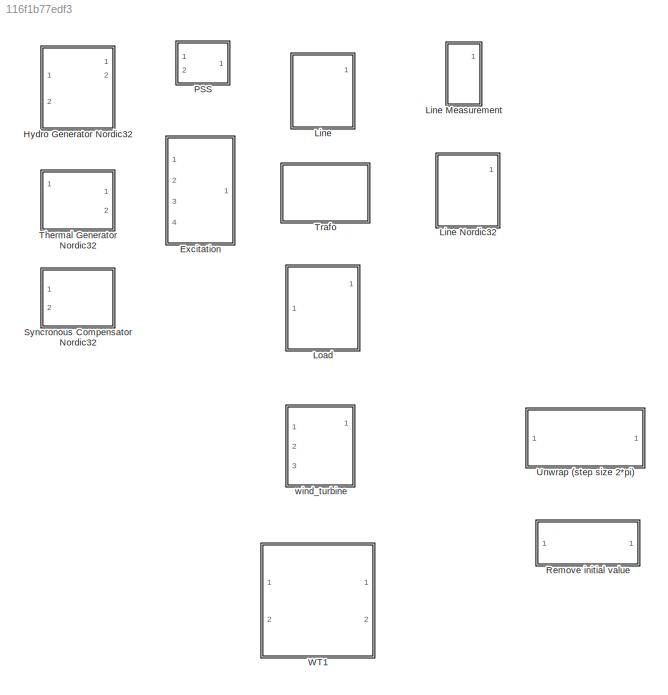
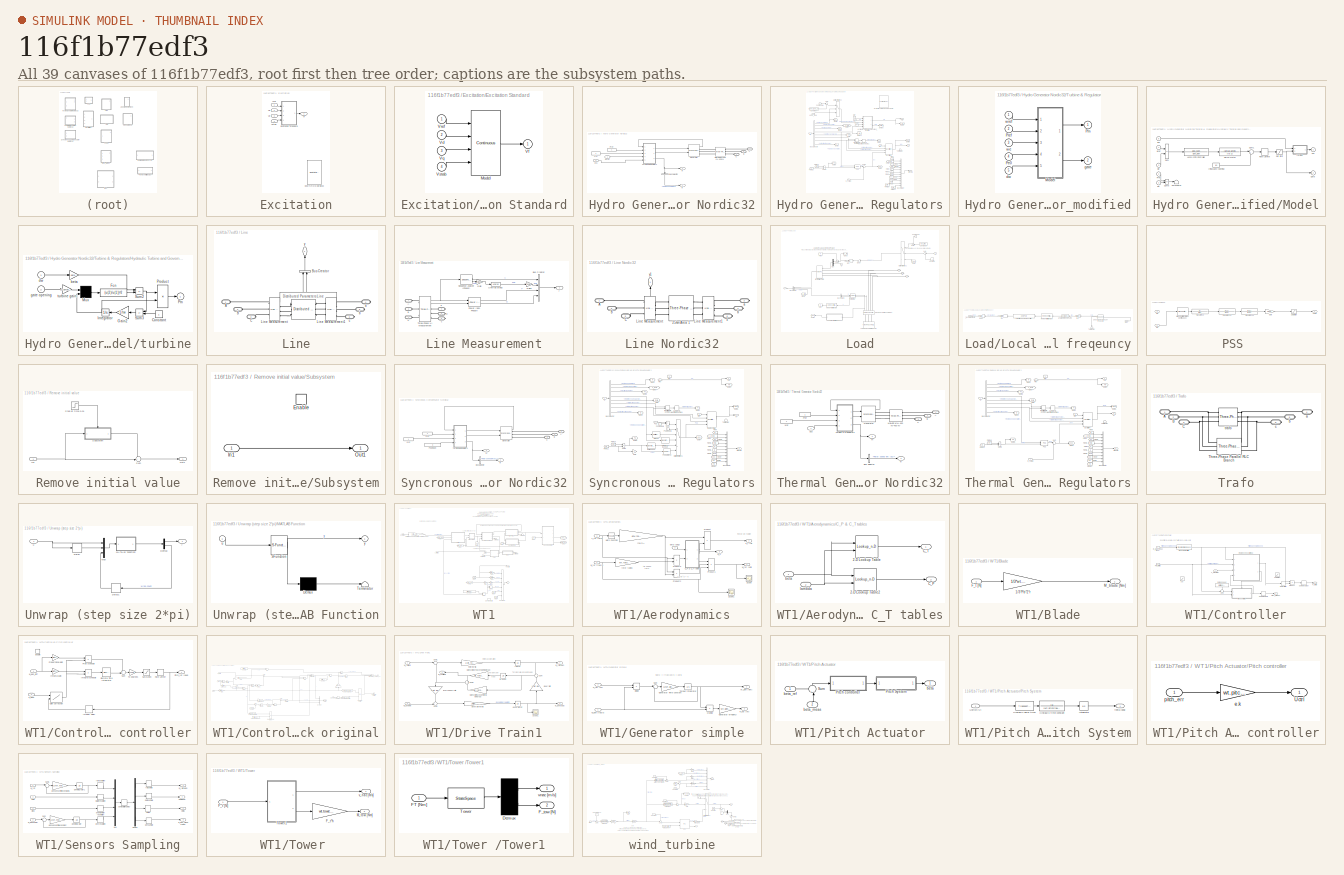
[diagram: thumbnail index - all 39 canvases of the model, root first then tree order]
MODEL slx_116f1b77edf3
KIND library
CONFIG AbsTol = auto
CONFIG EnableMultiTasking = off
CONFIG FixedStep = auto
CONFIG MaxStep = auto
CONFIG MinStep = auto
CONFIG RelTol = 1e-3
CONFIG SampleTimeConstraint = Unconstrained
CONFIG SolverName = VariableStepAuto
CONFIG StartTime = 0.0
CONFIG StopTime = 10.0
BLOCK [SubSystem] Excitation
  Ports = [4, 1]
  RequestExecContextInheritance = off
BLOCK [Reference] Excitation/EXCITATION Nordic32  REF=sps_avr/Excitation System
  Commented = on
  NameLocation = top
  Ports = [4, 1]
  SourceBlock = sps_avr/Excitation System
  SourceProductBaseCode = PS
  SourceType = Excitation System
BLOCK [SubSystem] Excitation/Excitation Standard
  CloseFcn = sps_rtmsupport('CloseFcn', gcbh);
  CopyFcn = sps_rtmsupport('CopyFcn', gcbh);
  DeleteFcn = sps_rtmsupport('DeleteFcn', gcbh);
  DialogController = POWERSYS.PowerSysDialog
  LoadFcn = sps_rtmsupport('LoadFcn', gcbh);
  ModelCloseFcn = sps_rtmsupport('ModelCloseFcn', gcbh);
  NameChangeFcn = sps_rtmsupport('NameChangeFcn', gcbh);
  OpenFcn = sps_rtmsupport('OpenFcn', gcbh, []);
  Ports = [4, 1]
  PostSaveFcn = sps_rtmsupport('PostSaveFcn', gcbh);
  PreCopyFcn = sps_rtmsupport('PreCopyFcn', gcbh);
  PreDeleteFcn = sps_rtmsupport('PreDeleteFcn', gcbh);
  PreSaveFcn = sps_rtmsupport('PreSaveFcn', gcbh);
  RequestExecContextInheritance = off
  StartFcn = sps_rtmsupport('StartFcn', gcbh);
  StopFcn = sps_rtmsupport('StopFcn', gcbh);
  UndoDeleteFcn = sps_rtmsupport('UndoDeleteFcn', gcbh);
BLOCK [Reference] Excitation/Excitation Standard/Model  REF=spsExcitationSystemModel/Continuous
  Ports = [4, 1]
  SourceBlock = spsExcitationSystemModel/Continuous
  SourceProductBaseCode = PS
  SourceType = Excitation System
BLOCK [Inport] Excitation/Excitation Standard/Vd
  Port = 2
BLOCK [Outport] Excitation/Excitation Standard/Vf
  InitialOutput = 0
  VectorParamsAs1DForOutWhenUnconnected = off
BLOCK [Inport] Excitation/Excitation Standard/Vq
  Port = 3
BLOCK [Inport] Excitation/Excitation Standard/Vref
BLOCK [Inport] Excitation/Excitation Standard/Vstab
  Port = 4
BLOCK [Inport] Excitation/Vd
  Port = 2
BLOCK [Outport] Excitation/Vf
BLOCK [Inport] Excitation/Vq
  Port = 3
BLOCK [Inport] Excitation/Vref
BLOCK [Inport] Excitation/Vstab
  Port = 4
BLOCK [SubSystem] Hydro Generator Nordic32
  Ports = [2, 2, 0, 0, 0, 3]
  RequestExecContextInheritance = off
BLOCK [Reference] Hydro Generator Nordic32/ MBASE MVA 400 kV-400 kV  REF=powerlib/Elements/Three-Phase
Transformer
(Two Windings)
  AttributesFormatString = \n
  Ports = [0, 0, 0, 0, 0, 3, 3]
  SourceBlock = powerlib/Elements/Three-Phase\nTransformer\n(Two Windings)
  SourceProductBaseCode = PS
  SourceType = Three-Phase Transformer (Two Windings)
BLOCK [PMIOPort] Hydro Generator Nordic32/A
  Side = Left
BLOCK [PMIOPort] Hydro Generator Nordic32/B
  Port = 2
  Side = Left
BLOCK [BusSelector] Hydro Generator Nordic32/Bus Selector
  NameLocation = left
  OutputSignals = Rotor speed  wm  (pu)
  Ports = [1, 1]
BLOCK [PMIOPort] Hydro Generator Nordic32/C
  Port = 3
  Side = Left
BLOCK [Reference] Hydro Generator Nordic32/Generator  REF=powerlib/Machines/Synchronous Machine
pu Standard
  AttributesFormatString = \n\n
  Ports = [2, 1, 0, 0, 0, 0, 3]
  SourceBlock = powerlib/Machines/Synchronous Machine\npu Standard
  SourceProductBaseCode = PS
  SourceType = Synchronous Machine
BLOCK [Constant] Hydro Generator Nordic32/Pref
  NameLocation = top
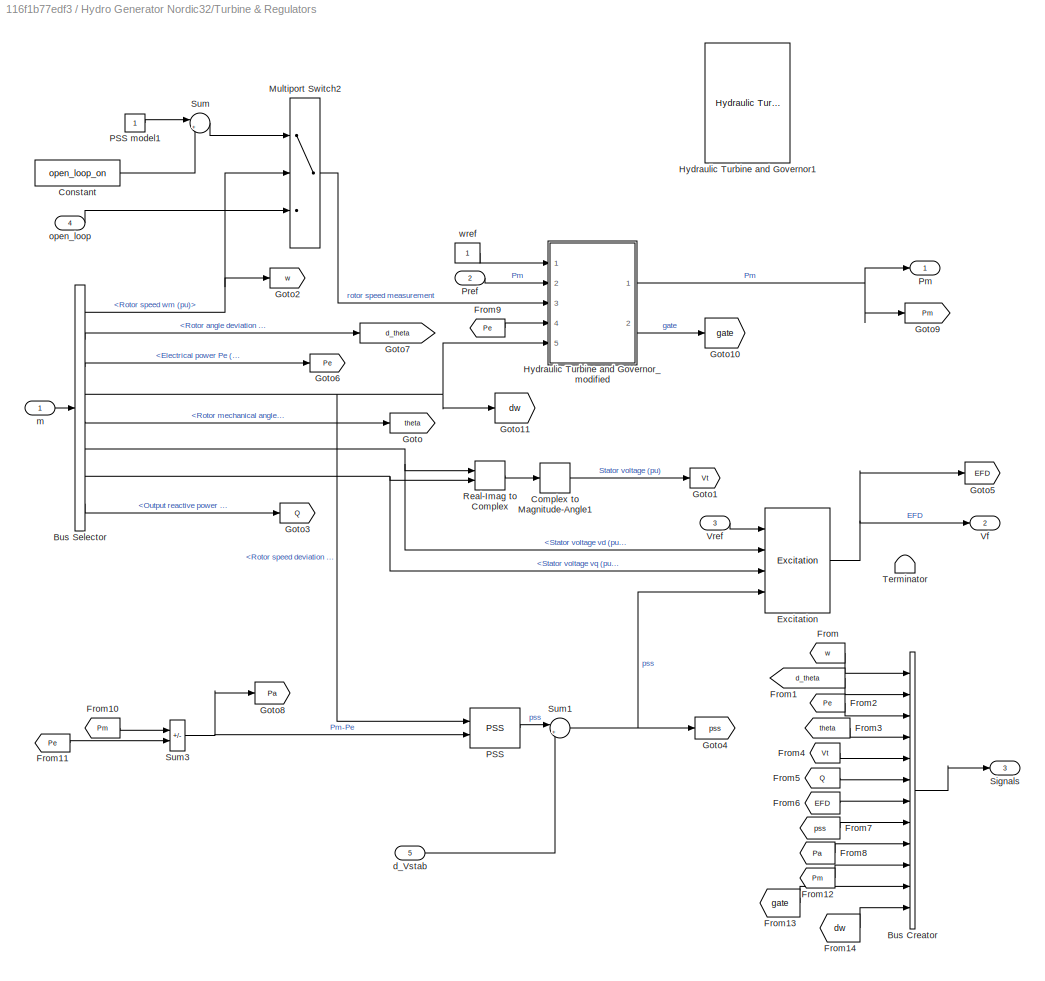
BLOCK [SubSystem] Hydro Generator Nordic32/Turbine & Regulators
  Ports = [5, 3]
  RequestExecContextInheritance = off
BLOCK [BusCreator] Hydro Generator Nordic32/Turbine & Regulators/Bus Creator
  DisplayOption = bar
  InheritFromInputs = on
  Inputs = 12
  Ports = [12, 1]
BLOCK [BusSelector] Hydro Generator Nordic32/Turbine & Regulators/Bus Selector
  OutputSignals = Mechanical.Rotor speed  wm  (pu),Mechanical.Rotor angle deviation  d_theta (rad),Mechanical.Electrical power  Pe (pu),Mechanical.Rotor speed deviation  dw (pu),Mechanical.Rotor mechanical angle  theta (deg),dq0 components.Stator voltage  vd (pu),dq0 components.Stator voltage  vq (pu),Output reactive power  Qeo (pu)  <repeated x3 — deduplicated; at blocks: Bus Selector>
  Ports = [1, 8]
BLOCK [ComplexToMagnitudeAngle] Hydro Generator Nordic32/Turbine & Regulators/Complex to Magnitude-Angle1
  Output = Magnitude
  Ports = [1, 1]
BLOCK [Constant] Hydro Generator Nordic32/Turbine & Regulators/Constant
  Value = open_loop_on
BLOCK [Reference] Hydro Generator Nordic32/Turbine & Regulators/Excitation  REF=$bdroot/Excitation
  Ports = [4, 1]
  SourceBlock = $bdroot/Excitation
BLOCK [From] Hydro Generator Nordic32/Turbine & Regulators/From
  GotoTag = w
BLOCK [From] Hydro Generator Nordic32/Turbine & Regulators/From1
  GotoTag = d_theta
BLOCK [From] Hydro Generator Nordic32/Turbine & Regulators/From10
  GotoTag = Pm
BLOCK [From] Hydro Generator Nordic32/Turbine & Regulators/From11
  GotoTag = Pe
BLOCK [From] Hydro Generator Nordic32/Turbine & Regulators/From12
  GotoTag = Pm
BLOCK [From] Hydro Generator Nordic32/Turbine & Regulators/From13
  GotoTag = gate
BLOCK [From] Hydro Generator Nordic32/Turbine & Regulators/From14
  GotoTag = dw
BLOCK [From] Hydro Generator Nordic32/Turbine & Regulators/From2
  GotoTag = Pe
BLOCK [From] Hydro Generator Nordic32/Turbine & Regulators/From3
  GotoTag = theta
BLOCK [From] Hydro Generator Nordic32/Turbine & Regulators/From4
  GotoTag = Vt
BLOCK [From] Hydro Generator Nordic32/Turbine & Regulators/From5
  GotoTag = Q
BLOCK [From] Hydro Generator Nordic32/Turbine & Regulators/From6
  GotoTag = EFD
BLOCK [From] Hydro Generator Nordic32/Turbine & Regulators/From7
  GotoTag = pss
BLOCK [From] Hydro Generator Nordic32/Turbine & Regulators/From8
  GotoTag = Pa
BLOCK [From] Hydro Generator Nordic32/Turbine & Regulators/From9
  GotoTag = Pe
BLOCK [Goto] Hydro Generator Nordic32/Turbine & Regulators/Goto
  GotoTag = theta
BLOCK [Goto] Hydro Generator Nordic32/Turbine & Regulators/Goto1
  GotoTag = Vt
BLOCK [Goto] Hydro Generator Nordic32/Turbine & Regulators/Goto10
  GotoTag = gate
BLOCK [Goto] Hydro Generator Nordic32/Turbine & Regulators/Goto11
  GotoTag = dw
BLOCK [Goto] Hydro Generator Nordic32/Turbine & Regulators/Goto2
  GotoTag = w
BLOCK [Goto] Hydro Generator Nordic32/Turbine & Regulators/Goto3
  GotoTag = Q
BLOCK [Goto] Hydro Generator Nordic32/Turbine & Regulators/Goto4
  GotoTag = pss
BLOCK [Goto] Hydro Generator Nordic32/Turbine & Regulators/Goto5
  GotoTag = EFD
BLOCK [Goto] Hydro Generator Nordic32/Turbine & Regulators/Goto6
  GotoTag = Pe
BLOCK [Goto] Hydro Generator Nordic32/Turbine & Regulators/Goto7
  GotoTag = d_theta
BLOCK [Goto] Hydro Generator Nordic32/Turbine & Regulators/Goto8
  GotoTag = Pa
BLOCK [Goto] Hydro Generator Nordic32/Turbine & Regulators/Goto9
  GotoTag = Pm
BLOCK [Reference] Hydro Generator Nordic32/Turbine & Regulators/Hydraulic Turbine and Governor1  REF=powerlib/Machines/Hydraulic Turbine
and Governor
  Commented = on
  Ports = [5, 2]
  SourceBlock = powerlib/Machines/Hydraulic Turbine\nand Governor
  SourceProductBaseCode = PS
  SourceType = Hydraulic Turbine and Governor
BLOCK [SubSystem] Hydro Generator Nordic32/Turbine & Regulators/Hydraulic Turbine and Governor_modified
  DialogController = POWERSYS.PowerSysDialog
  OpenFcn = sps_rtmsupport('OpenFcn',gcbh)
  Ports = [5, 2]
  RequestExecContextInheritance = off
BLOCK [SubSystem] Hydro Generator Nordic32/Turbine & Regulators/Hydraulic Turbine and Governor_modified/Model
  Ports = [5, 2]
  RequestExecContextInheritance = off
BLOCK [TransferFcn] Hydro Generator Nordic32/Turbine & Regulators/Hydraulic Turbine and Governor_modified/Model/Hydro FCR Controller
  Denominator = gov_den
  Numerator = gov_num
BLOCK [Constant] Hydro Generator Nordic32/Turbine & Regulators/Hydraulic Turbine and Governor_modified/Model/Initial gate opening
  Value = go
BLOCK [Inport] Hydro Generator Nordic32/Turbine & Regulators/Hydraulic Turbine and Governor_modified/Model/Pe
  Port = 4
BLOCK [Outport] Hydro Generator Nordic32/Turbine & Regulators/Hydraulic Turbine and Governor_modified/Model/Pm
  InitialOutput = 0
BLOCK [Inport] Hydro Generator Nordic32/Turbine & Regulators/Hydraulic Turbine and Governor_modified/Model/Pref
  Port = 2
BLOCK [RateLimiter] Hydro Generator Nordic32/Turbine & Regulators/Hydraulic Turbine and Governor_modified/Model/Rate Limiter
  FallingSlewLimit = vgmin
  RisingSlewLimit = vgmax
  SampleTimeMode = inherited
BLOCK [Saturate] Hydro Generator Nordic32/Turbine & Regulators/Hydraulic Turbine and Governor_modified/Model/Sat limit
  LowerLimit = gmin
  NameLocation = top
  UpperLimit = gmax
BLOCK [TransferFcn] Hydro Generator Nordic32/Turbine & Regulators/Hydraulic Turbine and Governor_modified/Model/Servo-motor
  Denominator = [ta 1]
  Numerator = [gmax-gmin]
BLOCK [Sum] Hydro Generator Nordic32/Turbine & Regulators/Hydraulic Turbine and Governor_modified/Model/Sum
  IconShape = rectangular
  InputSameDT = on
  Inputs = +-
  OutDataTypeStr = Inherit: Same as first input
  Ports = [2, 1]
  SaturateOnIntegerOverflow = on
BLOCK [Sum] Hydro Generator Nordic32/Turbine & Regulators/Hydraulic Turbine and Governor_modified/Model/Sum1
  Inputs = |++
  Ports = [2, 1]
BLOCK [Sum] Hydro Generator Nordic32/Turbine & Regulators/Hydraulic Turbine and Governor_modified/Model/Sum5
  IconShape = rectangular
  InputSameDT = on
  Inputs = -+
  OutDataTypeStr = Inherit: Same as first input
  Ports = [2, 1]
  SaturateOnIntegerOverflow = on
BLOCK [Terminator] Hydro Generator Nordic32/Turbine & Regulators/Hydraulic Turbine and Governor_modified/Model/Terminator
BLOCK [Inport] Hydro Generator Nordic32/Turbine & Regulators/Hydraulic Turbine and Governor_modified/Model/dw
  Port = 5
BLOCK [Outport] Hydro Generator Nordic32/Turbine & Regulators/Hydraulic Turbine and Governor_modified/Model/gate
  InitialOutput = 0
  Port = 2
BLOCK [SubSystem] Hydro Generator Nordic32/Turbine & Regulators/Hydraulic Turbine and Governor_modified/Model/turbine
  Ports = [2, 1]
  RequestExecContextInheritance = off
BLOCK [Constant] Hydro Generator Nordic32/Turbine & Regulators/Hydraulic Turbine and Governor_modified/Model/turbine/Constant
BLOCK [Fcn] Hydro Generator Nordic32/Turbine & Regulators/Hydraulic Turbine and Governor_modified/Model/turbine/Fcn
  Expr = (u(2)/u(1))^2
BLOCK [Gain] Hydro Generator Nordic32/Turbine & Regulators/Hydraulic Turbine and Governor_modified/Model/turbine/Gain2
  Gain = 1/tw
  OutDataTypeStr = Inherit: Same as input
  ParamDataTypeStr = Inherit: Same as input
  SaturateOnIntegerOverflow = on
BLOCK [Integrator] Hydro Generator Nordic32/Turbine & Regulators/Hydraulic Turbine and Governor_modified/Model/turbine/Integrator
  InitialCondition = po
  Ports = [1, 1]
BLOCK [Mux] Hydro Generator Nordic32/Turbine & Regulators/Hydraulic Turbine and Governor_modified/Model/turbine/Mux
  Inputs = 2
  Ports = [2, 1]
BLOCK [Outport] Hydro Generator Nordic32/Turbine & Regulators/Hydraulic Turbine and Governor_modified/Model/turbine/Pm
  InitialOutput = 0
BLOCK [Product] Hydro Generator Nordic32/Turbine & Regulators/Hydraulic Turbine and Governor_modified/Model/turbine/Product
  InputSameDT = on
  OutDataTypeStr = Inherit: Same as first input
  Ports = [2, 1]
  SaturateOnIntegerOverflow = on
BLOCK [Sum] Hydro Generator Nordic32/Turbine & Regulators/Hydraulic Turbine and Governor_modified/Model/turbine/Sum2
  IconShape = rectangular
  InputSameDT = on
  Inputs = -+
  OutDataTypeStr = Inherit: Same as first input
  Ports = [2, 1]
  SaturateOnIntegerOverflow = on
BLOCK [Sum] Hydro Generator Nordic32/Turbine & Regulators/Hydraulic Turbine and Governor_modified/Model/turbine/Sum3
  IconShape = rectangular
  InputSameDT = on
  Inputs = -+
  OutDataTypeStr = Inherit: Same as first input
  Ports = [2, 1]
  SaturateOnIntegerOverflow = on
BLOCK [Gain] Hydro Generator Nordic32/Turbine & Regulators/Hydraulic Turbine and Governor_modified/Model/turbine/beta
  Gain = beta
  OutDataTypeStr = Inherit: Same as input
  ParamDataTypeStr = Inherit: Same as input
  SaturateOnIntegerOverflow = on
BLOCK [Inport] Hydro Generator Nordic32/Turbine & Regulators/Hydraulic Turbine and Governor_modified/Model/turbine/dw
BLOCK [Inport] Hydro Generator Nordic32/Turbine & Regulators/Hydraulic Turbine and Governor_modified/Model/turbine/gate opening
  Port = 2
BLOCK [Gain] Hydro Generator Nordic32/Turbine & Regulators/Hydraulic Turbine and Governor_modified/Model/turbine/turbine gain
  Gain = 1/(gmax-gmin)
  OutDataTypeStr = Inherit: Same as input
  ParamDataTypeStr = Inherit: Same as input
  SaturateOnIntegerOverflow = on
BLOCK [Inport] Hydro Generator Nordic32/Turbine & Regulators/Hydraulic Turbine and Governor_modified/Model/we
  Port = 3
BLOCK [Inport] Hydro Generator Nordic32/Turbine & Regulators/Hydraulic Turbine and Governor_modified/Model/wref
BLOCK [Inport] Hydro Generator Nordic32/Turbine & Regulators/Hydraulic Turbine and Governor_modified/Pe0
  Port = 4
BLOCK [Outport] Hydro Generator Nordic32/Turbine & Regulators/Hydraulic Turbine and Governor_modified/Pm
  InitialOutput = 0
  VectorParamsAs1DForOutWhenUnconnected = off
BLOCK [Inport] Hydro Generator Nordic32/Turbine & Regulators/Hydraulic Turbine and Governor_modified/Pref
  Port = 2
BLOCK [Inport] Hydro Generator Nordic32/Turbine & Regulators/Hydraulic Turbine and Governor_modified/dw
  Port = 5
BLOCK [Outport] Hydro Generator Nordic32/Turbine & Regulators/Hydraulic Turbine and Governor_modified/gate
  InitialOutput = 0
  Port = 2
  VectorParamsAs1DForOutWhenUnconnected = off
BLOCK [Inport] Hydro Generator Nordic32/Turbine & Regulators/Hydraulic Turbine and Governor_modified/we
  Port = 3
BLOCK [Inport] Hydro Generator Nordic32/Turbine & Regulators/Hydraulic Turbine and Governor_modified/wref
BLOCK [MultiPortSwitch] Hydro Generator Nordic32/Turbine & Regulators/Multiport Switch2
  Inputs = 2
  Ports = [3, 1]
  SaturateOnIntegerOverflow = off
BLOCK [Reference] Hydro Generator Nordic32/Turbine & Regulators/PSS   REF=$bdroot/PSS 
  NameLocation = top
  Ports = [2, 1]
  SourceBlock = $bdroot/PSS
  SourceType = Power System Stabilizer, Nordic32
BLOCK [Constant] Hydro Generator Nordic32/Turbine & Regulators/PSS model1
BLOCK [Outport] Hydro Generator Nordic32/Turbine & Regulators/Pm
  InitialOutput = 0
  VectorParamsAs1DForOutWhenUnconnected = off
BLOCK [Inport] Hydro Generator Nordic32/Turbine & Regulators/Pref
  Port = 2
BLOCK [RealImagToComplex] Hydro Generator Nordic32/Turbine & Regulators/Real-Imag to Complex
  Ports = [2, 1]
BLOCK [Outport] Hydro Generator Nordic32/Turbine & Regulators/Signals
  InitialOutput = 0
  Port = 3
  VectorParamsAs1DForOutWhenUnconnected = off
BLOCK [Sum] Hydro Generator Nordic32/Turbine & Regulators/Sum
  Inputs = |++
  Ports = [2, 1]
BLOCK [Sum] Hydro Generator Nordic32/Turbine & Regulators/Sum1
  Inputs = |++
  Ports = [2, 1]
BLOCK [Sum] Hydro Generator Nordic32/Turbine & Regulators/Sum3
  IconShape = rectangular
  InputSameDT = on
  Inputs = +-
  OutDataTypeStr = Inherit: Same as first input
  Ports = [2, 1]
  SaturateOnIntegerOverflow = on
BLOCK [Terminator] Hydro Generator Nordic32/Turbine & Regulators/Terminator
  Commented = on
BLOCK [Outport] Hydro Generator Nordic32/Turbine & Regulators/Vf
  InitialOutput = 0
  Port = 2
  VectorParamsAs1DForOutWhenUnconnected = off
BLOCK [Inport] Hydro Generator Nordic32/Turbine & Regulators/Vref
  Port = 3
BLOCK [Inport] Hydro Generator Nordic32/Turbine & Regulators/d_Vstab
  Port = 5
BLOCK [Inport] Hydro Generator Nordic32/Turbine & Regulators/m
BLOCK [Inport] Hydro Generator Nordic32/Turbine & Regulators/open_loop
  Port = 4
BLOCK [Constant] Hydro Generator Nordic32/Turbine & Regulators/wref
  NameLocation = top
BLOCK [Constant] Hydro Generator Nordic32/Vref
  NameLocation = top
BLOCK [Inport] Hydro Generator Nordic32/dPref
BLOCK [Outport] Hydro Generator Nordic32/m
  VectorParamsAs1DForOutWhenUnconnected = off
BLOCK [Inport] Hydro Generator Nordic32/pss
  Port = 2
BLOCK [Outport] Hydro Generator Nordic32/w
  Port = 2
  VectorParamsAs1DForOutWhenUnconnected = off
BLOCK [SubSystem] Line
  PortSchema = {"entries":[{"content":{"sides":[{"content":{"connectorIds":["LConn1","LConn2","LConn3"]},"type":"ConnectorPlacement.EquallySpacedRectSide","uuid":"159cc543-018e-4826-b622-a4d07c97e386"},{"content":{"connectorIds":["RConn1","RConn2","RConn3"],"side":"RIGHT"},"type":"ConnectorPlacement.EquallySpacedRectSide","uuid":"cb1aeae8-69bb-45ac-8689-4e8674d58501"},{"content":{"connectorIds":["Out1"],"side":"...<+289ch>
  Ports = [0, 1, 0, 0, 0, 3, 3]
  RequestExecContextInheritance = off
BLOCK [SubSystem] Line Measurement
  PortSchema = {"entries":[{"content":{"sides":[{"content":{"connectorIds":["LConn1","LConn2","LConn3"]},"type":"ConnectorPlacement.EquallySpacedRectSide","uuid":"159cc543-018e-4826-b622-a4d07c97e386"},{"content":{"connectorIds":["RConn1","RConn2","RConn3"],"side":"RIGHT"},"type":"ConnectorPlacement.EquallySpacedRectSide","uuid":"cb1aeae8-69bb-45ac-8689-4e8674d58501"},{"content":{"connectorIds":["Out1"],"side":"...<+289ch>
  Ports = [0, 1, 0, 0, 0, 3, 3]
  RequestExecContextInheritance = off
BLOCK [PMIOPort] Line Measurement/A
  Side = Left
BLOCK [PMIOPort] Line Measurement/B
  Port = 2
  Side = Left
BLOCK [BusCreator] Line Measurement/Bus Creator
  DisplayOption = bar
  InheritFromInputs = on
  Inputs = 4
  Ports = [4, 1]
BLOCK [PMIOPort] Line Measurement/C
  Port = 3
  Side = Left
BLOCK [Gain] Line Measurement/Gain
  Gain = pi/180
BLOCK [Gain] Line Measurement/Gain1
  Gain = 180/pi
BLOCK [Reference] Line Measurement/Power (3ph, Phasor)  REF=powerlib_meascontrol/Measurements/Power
(3ph, Phasor)
  Ports = [2, 2]
  SourceBlock = powerlib_meascontrol/Measurements/Power\n(3ph, Phasor)
  SourceProductBaseCode = PS
  SourceType = Power (3ph, Phasor)
BLOCK [Reference] Line Measurement/Sequence Analyzer (Phasor)  REF=powerlib_meascontrol/Measurements/Sequence Analyzer
(Phasor)
  Ports = [1, 2]
  SourceBlock = powerlib_meascontrol/Measurements/Sequence Analyzer\n(Phasor)
  SourceProductBaseCode = PS
  SourceType = Sequence Analyzer (Phasor)
BLOCK [Reference] Line Measurement/Three-Phase V-I Measurement  REF=powerlib/Measurements/Three-Phase
V-I Measurement
  Ports = [0, 2, 0, 0, 0, 3, 3]
  SourceBlock = powerlib/Measurements/Three-Phase\nV-I Measurement
  SourceProductBaseCode = PS
  SourceType = Three-Phase VI Measurement
BLOCK [Reference] Line Measurement/Unwrap pi deg  REF=dspsigops/Unwrap
  Ports = [1, 1]
  SourceBlock = dspsigops/Unwrap
  SourceProductBaseCode = DS
  SourceType = Unwrap
  UserDataPersistent = on
BLOCK [PMIOPort] Line Measurement/a
  Port = 4
  Side = Right
BLOCK [PMIOPort] Line Measurement/b
  Port = 5
  Side = Right
BLOCK [PMIOPort] Line Measurement/c
  Port = 6
  Side = Right
BLOCK [Outport] Line Measurement/y
BLOCK [SubSystem] Line Nordic32
  Commented = on
  Ports = [0, 1, 0, 0, 0, 3, 3]
  RequestExecContextInheritance = off
BLOCK [Reference] Line Nordic32/25km Area 1  REF=powerlib/Elements/Three-Phase
PI Section Line
  AttributesFormatString = \n
  Ports = [0, 0, 0, 0, 0, 3, 3]
  SourceBlock = powerlib/Elements/Three-Phase\nPI Section Line
  SourceProductBaseCode = PS
  SourceType = Three-Phase PI Section Line
BLOCK [PMIOPort] Line Nordic32/A
  Side = Left
BLOCK [PMIOPort] Line Nordic32/B
  Port = 3
  Side = Left
BLOCK [PMIOPort] Line Nordic32/C
  Port = 5
  Side = Left
BLOCK [Reference] Line Nordic32/Line Measurement  REF=$bdroot/Line 
Measurement
  Ports = [0, 1, 0, 0, 0, 3, 3]
  SourceBlock = $bdroot/Line \nMeasurement
BLOCK [Reference] Line Nordic32/Line Measurement1  REF=$bdroot/Line 
Measurement
  Ports = [0, 1, 0, 0, 0, 3, 3]
  SourceBlock = $bdroot/Line \nMeasurement
BLOCK [PMIOPort] Line Nordic32/a
  Port = 2
  Side = Right
BLOCK [PMIOPort] Line Nordic32/b
  Port = 4
  Side = Right
BLOCK [PMIOPort] Line Nordic32/c
  Port = 6
  Side = Right
BLOCK [Outport] Line Nordic32/y1
  NameLocation = right
BLOCK [PMIOPort] Line/A
  Side = Left
BLOCK [PMIOPort] Line/B
  Port = 2
  Side = Left
BLOCK [BusCreator] Line/Bus Creator
  DisplayOption = bar
  InheritFromInputs = on
  Inputs = 2
  NameLocation = right
  Ports = [2, 1]
BLOCK [PMIOPort] Line/C
  Port = 3
  Side = Left
BLOCK [Reference] Line/Distributed Parameters Line  REF=powerlib/Elements/Distributed Parameters Line
  Ports = [0, 0, 0, 0, 0, 3, 3]
  SourceBlock = powerlib/Elements/Distributed Parameters Line
  SourceProductBaseCode = PS
  SourceType = Distributed Parameters Line
BLOCK [Reference] Line/Line Measurement  REF=$bdroot/Line 
Measurement
  Ports = [0, 1, 0, 0, 0, 3, 3]
  SourceBlock = $bdroot/Line \nMeasurement
BLOCK [Reference] Line/Line Measurement1  REF=$bdroot/Line 
Measurement
  Ports = [0, 1, 0, 0, 0, 3, 3]
  SourceBlock = $bdroot/Line \nMeasurement
BLOCK [PMIOPort] Line/a
  Port = 4
  Side = Right
BLOCK [PMIOPort] Line/b
  Port = 5
  Side = Right
BLOCK [PMIOPort] Line/c
  Port = 6
  Side = Right
BLOCK [Outport] Line/y
  NameLocation = right
BLOCK [SubSystem] Load
  Ports = [1, 1, 0, 0, 0, 0, 3]
  RequestExecContextInheritance = off
BLOCK [PMIOPort] Load/A
  Side = Right
BLOCK [PMIOPort] Load/B
  Port = 2
  Side = Right
BLOCK [BusCreator] Load/Bus Creator
  DisplayOption = bar
  InheritFromInputs = on
  Inputs = 3
  NameLocation = top
  Ports = [3, 1]
BLOCK [BusCreator] Load/Bus Creator1
  DisplayOption = bar
  InheritFromInputs = on
  Inputs = 2
  NameLocation = top
  Ports = [2, 1]
BLOCK [PMIOPort] Load/C
  Port = 3
  Side = Right
BLOCK [Constant] Load/Constant
  NameLocation = top
BLOCK [Constant] Load/Constant1
  NameLocation = top
  Value = local_freq
BLOCK [From] Load/From
  GotoTag = P
  NameLocation = top
BLOCK [From] Load/From1
  GotoTag = f_local
BLOCK [From] Load/From2
  GotoTag = PL_freq
BLOCK [Gain] Load/Gain
  Gain = PL_freq*1e6
  NameLocation = top
BLOCK [Gain] Load/Gain1
  Gain = fn
  NameLocation = top
BLOCK [Goto] Load/Goto
  GotoTag = P
  NameLocation = top
BLOCK [Goto] Load/Goto1
  GotoTag = f_local
  NameLocation = top
BLOCK [Goto] Load/Goto2
  GotoTag = PL_freq
BLOCK [SubSystem] Load/Local electrical freqeuncy
  NameLocation = top
  Ports = [1, 1]
  RequestExecContextInheritance = off
BLOCK [Gain] Load/Local electrical freqeuncy/Gain3
  Gain = 1/50
BLOCK [Reference] Load/Local electrical freqeuncy/Remove initial value  REF=$bdroot/Remove initial value
  NameLocation = top
  Ports = [1, 1]
  SourceBlock = $bdroot/Remove initial value
  SourceType = SubSystem
BLOCK [Reference] Load/Local electrical freqeuncy/Sequence Analyzer (Phasor)1  REF=powerlib_meascontrol/Measurements/Sequence Analyzer
(Phasor)
  NameLocation = top
  Ports = [1, 2]
  SourceBlock = powerlib_meascontrol/Measurements/Sequence Analyzer\n(Phasor)
  SourceProductBaseCode = PS
  SourceType = Sequence Analyzer (Phasor)
BLOCK [Terminator] Load/Local electrical freqeuncy/Terminator
  NameLocation = left
BLOCK [Reference] Load/Local electrical freqeuncy/Unwrap (step size 2*pi)  REF=$bdroot/Unwrap (step size 2*pi)
  NameLocation = top
  Ports = [1, 1]
  SourceBlock = $bdroot/Unwrap (step size 2*pi)
  SourceType = SubSystem
BLOCK [Inport] Load/Local electrical freqeuncy/abc
BLOCK [ZeroPole] Load/Local electrical freqeuncy/derivative and low-pass filter
  Gain = 10*100
  NameLocation = top
  Poles = [-10 -100]
  Zeros = [0]
BLOCK [Outport] Load/Local electrical freqeuncy/f_local - 1 [per unit]
BLOCK [Gain] Load/Local electrical freqeuncy/th3
  Gain = pi/180
  NameLocation = top
  OutDataTypeStr = Inherit: Same as input
  ParamDataTypeStr = Inherit: Same as input
  SaturateOnIntegerOverflow = on
BLOCK [Gain] Load/Local electrical freqeuncy/th4
  Gain = 1/(2*pi)
  OutDataTypeStr = Inherit: Same as input
  ParamDataTypeStr = Inherit: Same as input
  SaturateOnIntegerOverflow = on
BLOCK [MultiPortSwitch] Load/Multiport Switch2
  Inputs = 2
  Ports = [3, 1]
  SaturateOnIntegerOverflow = off
BLOCK [Mux] Load/Mux
  DisplayOption = bar
  Inputs = 2
  NameLocation = top
  Ports = [2, 1]
BLOCK [Constant] Load/PSS model1
BLOCK [Reference] Load/Power (3ph, Phasor)  REF=powerlib_meascontrol/Measurements/Power
(3ph, Phasor)
  NameLocation = top
  Ports = [2, 2]
  SourceBlock = powerlib_meascontrol/Measurements/Power\n(3ph, Phasor)
  SourceProductBaseCode = PS
  SourceType = Power (3ph, Phasor)
BLOCK [Constant] Load/Q
  Value = 0
BLOCK [Reference] Load/Remove initial value  REF=$bdroot/Remove initial value
  NameLocation = top
  Ports = [1, 1]
  SourceBlock = $bdroot/Remove initial value
  SourceType = SubSystem
BLOCK [Sum] Load/Sum
  Inputs = |+-
  NameLocation = top
  Ports = [2, 1]
BLOCK [Sum] Load/Sum1
  Inputs = ++|
  Ports = [2, 1]
BLOCK [Sum] Load/Sum2
  Inputs = ++|
  Ports = [2, 1]
BLOCK [Reference] Load/Three-Phase Dynamic Load  REF=powerlib/Elements/Three-Phase
Dynamic Load
  NameLocation = top
  Ports = [1, 1, 0, 0, 0, 3]
  SourceBlock = powerlib/Elements/Three-Phase\nDynamic Load
  SourceProductBaseCode = PS
  SourceType = Three-Phase Dynamic Load
BLOCK [Reference] Load/Three-Phase Parallel C Load  REF=powerlib/Elements/Three-Phase
Parallel RLC Load
  AttributesFormatString = \n
  NameLocation = left
  Ports = [0, 0, 0, 0, 0, 3]
  SourceBlock = powerlib/Elements/Three-Phase\nParallel RLC Load
  SourceProductBaseCode = PS
  SourceType = Three-Phase Parallel RLC Load
BLOCK [Reference] Load/Three-Phase V-I Measurement  REF=powerlib/Measurements/Three-Phase
V-I Measurement
  NameLocation = right
  Ports = [0, 2, 0, 0, 0, 3, 3]
  SourceBlock = powerlib/Measurements/Three-Phase\nV-I Measurement
  SourceProductBaseCode = PS
  SourceType = Three-Phase VI Measurement
BLOCK [Inport] Load/f
  NameLocation = top
BLOCK [Outport] Load/y
  NameLocation = top
  VectorParamsAs1DForOutWhenUnconnected = off
BLOCK [SubSystem] PSS 
  NameLocation = top
  Ports = [2, 1]
  RequestExecContextInheritance = off
BLOCK [Gain] PSS /Gain
  Gain = Kpss
BLOCK [Inport] PSS /Pa
  Port = 2
BLOCK [Saturate] PSS /Saturation
  LowerLimit = -VMIN
  UpperLimit = VMAX
BLOCK [TransferFcn] PSS /Transfer Fcn
  Denominator = [Tf 1]
BLOCK [TransferFcn] PSS /Transfer Fcn2
  Denominator = [T2 1]
  Numerator = [T1 1]
BLOCK [TransferFcn] PSS /Transfer Fcn3
  Denominator = [T4 1]
  Numerator = [T3 1]
BLOCK [Outport] PSS /Vstab
  VectorParamsAs1DForOutWhenUnconnected = off
BLOCK [Reference] PSS /Washout (Discrete or Continuous)  REF=eeGeneralControl/Washout
(Discrete or Continuous)
  Ports = [1, 1]
  SourceBlock = eeGeneralControl/Washout\n(Discrete or Continuous)
  SourceProductBaseCode = PS
  SourceType = Washout (Discrete or Continuous)
BLOCK [Inport] PSS /wd
BLOCK [SubSystem] Remove initial value
  Ports = [1, 1]
  RequestExecContextInheritance = off
BLOCK [Inport] Remove initial value/In1
BLOCK [Outport] Remove initial value/Out1
BLOCK [Step] Remove initial value/Step at time 0.01
  After = 0
  Before = 1
  SampleTime = 0
  Time = 0.01
BLOCK [SubSystem] Remove initial value/Subsystem
  Ports = [1, 1, 1]
  RequestExecContextInheritance = off
BLOCK [EnablePort] Remove initial value/Subsystem/Enable
  Ports = []
BLOCK [Inport] Remove initial value/Subsystem/In1
BLOCK [Outport] Remove initial value/Subsystem/Out1
BLOCK [Sum] Remove initial value/Sum
  Inputs = -+|
  Ports = [2, 1]
BLOCK [SubSystem] Syncronous Compensator Nordic32
  Commented = on
  Ports = [0, 2, 0, 0, 0, 3]
  RequestExecContextInheritance = off
BLOCK [PMIOPort] Syncronous Compensator Nordic32/A
  Side = Left
BLOCK [PMIOPort] Syncronous Compensator Nordic32/B
  Port = 2
  Side = Left
BLOCK [BusSelector] Syncronous Compensator Nordic32/Bus Selector
  OutputSignals = Rotor speed  wm  (pu)
  Ports = [1, 1]
BLOCK [PMIOPort] Syncronous Compensator Nordic32/C
  Port = 3
  Side = Left
BLOCK [Reference] Syncronous Compensator Nordic32/Generator  REF=powerlib/Machines/Synchronous Machine
pu Standard
  AttributesFormatString = \n\n
  Ports = [2, 1, 0, 0, 0, 0, 3]
  SourceBlock = powerlib/Machines/Synchronous Machine\npu Standard
  SourceProductBaseCode = PS
  SourceType = Synchronous Machine
BLOCK [Constant] Syncronous Compensator Nordic32/PSS model
  Value = 0
BLOCK [Constant] Syncronous Compensator Nordic32/Pref
  NameLocation = top
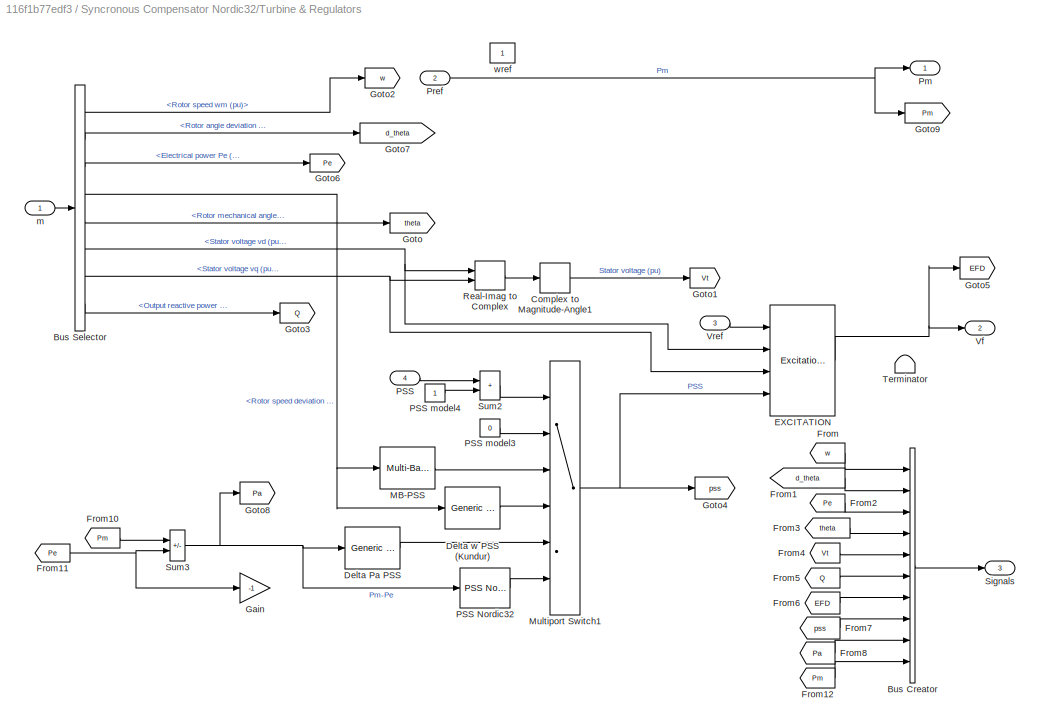
BLOCK [SubSystem] Syncronous Compensator Nordic32/Turbine & Regulators
  Ports = [4, 3]
  RequestExecContextInheritance = off
BLOCK [BusCreator] Syncronous Compensator Nordic32/Turbine & Regulators/Bus Creator
  DisplayOption = bar
  InheritFromInputs = on
  Inputs = 10
  Ports = [10, 1]
BLOCK [BusSelector] Syncronous Compensator Nordic32/Turbine & Regulators/Bus Selector
  Ports = [1, 8]
BLOCK [ComplexToMagnitudeAngle] Syncronous Compensator Nordic32/Turbine & Regulators/Complex to Magnitude-Angle1
  Output = Magnitude
  Ports = [1, 1]
BLOCK [Reference] Syncronous Compensator Nordic32/Turbine & Regulators/Delta Pa PSS   REF=powerlib/Machines/Generic
Power System Stabilizer
  Ports = [1, 1]
  SourceBlock = powerlib/Machines/Generic\nPower System Stabilizer
  SourceProductBaseCode = PS
  SourceType = Generic Power System Stabilizer
BLOCK [Reference] Syncronous Compensator Nordic32/Turbine & Regulators/Delta w PSS (Kundur)   REF=powerlib/Machines/Generic
Power System Stabilizer
  Ports = [1, 1]
  SourceBlock = powerlib/Machines/Generic\nPower System Stabilizer
  SourceProductBaseCode = PS
  SourceType = Generic Power System Stabilizer
BLOCK [Reference] Syncronous Compensator Nordic32/Turbine & Regulators/EXCITATION  REF=sps_avr/Excitation System
  NameLocation = top
  Ports = [4, 1]
  SourceBlock = sps_avr/Excitation System
  SourceProductBaseCode = PS
  SourceType = Excitation System
BLOCK [From] Syncronous Compensator Nordic32/Turbine & Regulators/From
  GotoTag = w
BLOCK [From] Syncronous Compensator Nordic32/Turbine & Regulators/From1
  GotoTag = d_theta
BLOCK [From] Syncronous Compensator Nordic32/Turbine & Regulators/From10
  GotoTag = Pm
BLOCK [From] Syncronous Compensator Nordic32/Turbine & Regulators/From11
  GotoTag = Pe
BLOCK [From] Syncronous Compensator Nordic32/Turbine & Regulators/From12
  GotoTag = Pm
BLOCK [From] Syncronous Compensator Nordic32/Turbine & Regulators/From2
  GotoTag = Pe
BLOCK [From] Syncronous Compensator Nordic32/Turbine & Regulators/From3
  GotoTag = theta
BLOCK [From] Syncronous Compensator Nordic32/Turbine & Regulators/From4
  GotoTag = Vt
BLOCK [From] Syncronous Compensator Nordic32/Turbine & Regulators/From5
  GotoTag = Q
BLOCK [From] Syncronous Compensator Nordic32/Turbine & Regulators/From6
  GotoTag = EFD
BLOCK [From] Syncronous Compensator Nordic32/Turbine & Regulators/From7
  GotoTag = pss
BLOCK [From] Syncronous Compensator Nordic32/Turbine & Regulators/From8
  GotoTag = Pa
BLOCK [Gain] Syncronous Compensator Nordic32/Turbine & Regulators/Gain
  Commented = on
  Gain = -1
BLOCK [Goto] Syncronous Compensator Nordic32/Turbine & Regulators/Goto
  GotoTag = theta
BLOCK [Goto] Syncronous Compensator Nordic32/Turbine & Regulators/Goto1
  GotoTag = Vt
BLOCK [Goto] Syncronous Compensator Nordic32/Turbine & Regulators/Goto2
  GotoTag = w
BLOCK [Goto] Syncronous Compensator Nordic32/Turbine & Regulators/Goto3
  GotoTag = Q
BLOCK [Goto] Syncronous Compensator Nordic32/Turbine & Regulators/Goto4
  GotoTag = pss
BLOCK [Goto] Syncronous Compensator Nordic32/Turbine & Regulators/Goto5
  GotoTag = EFD
BLOCK [Goto] Syncronous Compensator Nordic32/Turbine & Regulators/Goto6
  GotoTag = Pe
BLOCK [Goto] Syncronous Compensator Nordic32/Turbine & Regulators/Goto7
  GotoTag = d_theta
BLOCK [Goto] Syncronous Compensator Nordic32/Turbine & Regulators/Goto8
  GotoTag = Pa
BLOCK [Goto] Syncronous Compensator Nordic32/Turbine & Regulators/Goto9
  GotoTag = Pm
BLOCK [Reference] Syncronous Compensator Nordic32/Turbine & Regulators/MB-PSS  REF=powerlib/Machines/Multi-Band
Power System Stabilizer
  Ports = [1, 1]
  SourceBlock = powerlib/Machines/Multi-Band\nPower System Stabilizer
  SourceProductBaseCode = PS
  SourceType = Multi-Band Power System Stabilizer
BLOCK [MultiPortSwitch] Syncronous Compensator Nordic32/Turbine & Regulators/Multiport Switch1
  Inputs = 5
  Ports = [6, 1]
  SaturateOnIntegerOverflow = off
BLOCK [Inport] Syncronous Compensator Nordic32/Turbine & Regulators/PSS
  Port = 4
BLOCK [Reference] Syncronous Compensator Nordic32/Turbine & Regulators/PSS Nordic32  REF=$bdroot/PSS 
Nordic32
  Ports = [1, 1]
  SourceBlock = $bdroot/PSS \nNordic32
  SourceType = Power System Stabilizer, Nordic32
BLOCK [Constant] Syncronous Compensator Nordic32/Turbine & Regulators/PSS model3
  Value = 0
BLOCK [Constant] Syncronous Compensator Nordic32/Turbine & Regulators/PSS model4
BLOCK [Outport] Syncronous Compensator Nordic32/Turbine & Regulators/Pm
  InitialOutput = 0
  VectorParamsAs1DForOutWhenUnconnected = off
BLOCK [Inport] Syncronous Compensator Nordic32/Turbine & Regulators/Pref
  Port = 2
BLOCK [RealImagToComplex] Syncronous Compensator Nordic32/Turbine & Regulators/Real-Imag to Complex
  Ports = [2, 1]
BLOCK [Outport] Syncronous Compensator Nordic32/Turbine & Regulators/Signals
  InitialOutput = 0
  Port = 3
  VectorParamsAs1DForOutWhenUnconnected = off
BLOCK [Sum] Syncronous Compensator Nordic32/Turbine & Regulators/Sum2
  IconShape = rectangular
  InputSameDT = on
  OutDataTypeStr = Inherit: Same as first input
  Ports = [2, 1]
  SaturateOnIntegerOverflow = on
BLOCK [Sum] Syncronous Compensator Nordic32/Turbine & Regulators/Sum3
  IconShape = rectangular
  InputSameDT = on
  Inputs = +-
  OutDataTypeStr = Inherit: Same as first input
  Ports = [2, 1]
  SaturateOnIntegerOverflow = on
BLOCK [Terminator] Syncronous Compensator Nordic32/Turbine & Regulators/Terminator
  Commented = on
BLOCK [Outport] Syncronous Compensator Nordic32/Turbine & Regulators/Vf
  InitialOutput = 0
  Port = 2
  VectorParamsAs1DForOutWhenUnconnected = off
BLOCK [Inport] Syncronous Compensator Nordic32/Turbine & Regulators/Vref
  Port = 3
BLOCK [Inport] Syncronous Compensator Nordic32/Turbine & Regulators/m
BLOCK [Constant] Syncronous Compensator Nordic32/Turbine & Regulators/wref
  Commented = on
  NameLocation = top
BLOCK [Constant] Syncronous Compensator Nordic32/Vref
  NameLocation = top
BLOCK [Outport] Syncronous Compensator Nordic32/m
  VectorParamsAs1DForOutWhenUnconnected = off
BLOCK [Outport] Syncronous Compensator Nordic32/w
  Port = 2
  VectorParamsAs1DForOutWhenUnconnected = off
BLOCK [SubSystem] Thermal Generator Nordic32
  Ports = [1, 2, 0, 0, 0, 3]
  RequestExecContextInheritance = off
BLOCK [Reference] Thermal Generator Nordic32/ MBASE MVA 400 kV-400 kV  REF=powerlib/Elements/Three-Phase
Transformer
(Two Windings)
  AttributesFormatString = \n
  Ports = [0, 0, 0, 0, 0, 3, 3]
  SourceBlock = powerlib/Elements/Three-Phase\nTransformer\n(Two Windings)
  SourceProductBaseCode = PS
  SourceType = Three-Phase Transformer (Two Windings)
BLOCK [PMIOPort] Thermal Generator Nordic32/A
  Side = Left
BLOCK [PMIOPort] Thermal Generator Nordic32/B
  Port = 2
  Side = Left
BLOCK [BusSelector] Thermal Generator Nordic32/Bus Selector
  OutputSignals = Rotor speed  wm  (pu)
  Ports = [1, 1]
BLOCK [PMIOPort] Thermal Generator Nordic32/C
  Port = 3
  Side = Left
BLOCK [Reference] Thermal Generator Nordic32/Generator  REF=powerlib/Machines/Synchronous Machine
pu Standard
  AttributesFormatString = \n\n
  Ports = [2, 1, 0, 0, 0, 0, 3]
  SourceBlock = powerlib/Machines/Synchronous Machine\npu Standard
  SourceProductBaseCode = PS
  SourceType = Synchronous Machine
BLOCK [Constant] Thermal Generator Nordic32/Pref
  NameLocation = top
BLOCK [SubSystem] Thermal Generator Nordic32/Turbine & Regulators
  Ports = [4, 3]
  RequestExecContextInheritance = off
BLOCK [BusCreator] Thermal Generator Nordic32/Turbine & Regulators/Bus Creator
  DisplayOption = bar
  InheritFromInputs = on
  Inputs = 10
  Ports = [10, 1]
BLOCK [BusSelector] Thermal Generator Nordic32/Turbine & Regulators/Bus Selector
  Ports = [1, 8]
BLOCK [ComplexToMagnitudeAngle] Thermal Generator Nordic32/Turbine & Regulators/Complex to Magnitude-Angle1
  Output = Magnitude
  Ports = [1, 1]
BLOCK [Reference] Thermal Generator Nordic32/Turbine & Regulators/Excitation  REF=$bdroot/Excitation
  Ports = [4, 1]
  SourceBlock = $bdroot/Excitation
BLOCK [From] Thermal Generator Nordic32/Turbine & Regulators/From
  GotoTag = w
BLOCK [From] Thermal Generator Nordic32/Turbine & Regulators/From1
  GotoTag = d_theta
BLOCK [From] Thermal Generator Nordic32/Turbine & Regulators/From10
  GotoTag = Pm
BLOCK [From] Thermal Generator Nordic32/Turbine & Regulators/From11
  GotoTag = Pe
BLOCK [From] Thermal Generator Nordic32/Turbine & Regulators/From12
  GotoTag = Pm
BLOCK [From] Thermal Generator Nordic32/Turbine & Regulators/From2
  GotoTag = Pe
BLOCK [From] Thermal Generator Nordic32/Turbine & Regulators/From3
  GotoTag = theta
BLOCK [From] Thermal Generator Nordic32/Turbine & Regulators/From4
  GotoTag = Vt
BLOCK [From] Thermal Generator Nordic32/Turbine & Regulators/From5
  GotoTag = Q
BLOCK [From] Thermal Generator Nordic32/Turbine & Regulators/From6
  GotoTag = EFD
BLOCK [From] Thermal Generator Nordic32/Turbine & Regulators/From7
  GotoTag = pss
BLOCK [From] Thermal Generator Nordic32/Turbine & Regulators/From8
  GotoTag = Pa
BLOCK [Goto] Thermal Generator Nordic32/Turbine & Regulators/Goto
  GotoTag = theta
BLOCK [Goto] Thermal Generator Nordic32/Turbine & Regulators/Goto1
  GotoTag = Vt
BLOCK [Goto] Thermal Generator Nordic32/Turbine & Regulators/Goto2
  GotoTag = w
BLOCK [Goto] Thermal Generator Nordic32/Turbine & Regulators/Goto3
  GotoTag = Q
BLOCK [Goto] Thermal Generator Nordic32/Turbine & Regulators/Goto4
  GotoTag = pss
BLOCK [Goto] Thermal Generator Nordic32/Turbine & Regulators/Goto5
  GotoTag = EFD
BLOCK [Goto] Thermal Generator Nordic32/Turbine & Regulators/Goto6
  GotoTag = Pe
BLOCK [Goto] Thermal Generator Nordic32/Turbine & Regulators/Goto7
  GotoTag = d_theta
BLOCK [Goto] Thermal Generator Nordic32/Turbine & Regulators/Goto8
  GotoTag = Pa
BLOCK [Goto] Thermal Generator Nordic32/Turbine & Regulators/Goto9
  GotoTag = Pm
BLOCK [Reference] Thermal Generator Nordic32/Turbine & Regulators/PSS   REF=$bdroot/PSS 
  NameLocation = top
  Ports = [2, 1]
  SourceBlock = $bdroot/PSS
  SourceType = Power System Stabilizer, Nordic32
BLOCK [Outport] Thermal Generator Nordic32/Turbine & Regulators/Pm
  InitialOutput = 0
  VectorParamsAs1DForOutWhenUnconnected = off
BLOCK [Inport] Thermal Generator Nordic32/Turbine & Regulators/Pref
  Port = 2
BLOCK [RealImagToComplex] Thermal Generator Nordic32/Turbine & Regulators/Real-Imag to Complex
  Ports = [2, 1]
BLOCK [Outport] Thermal Generator Nordic32/Turbine & Regulators/Signals
  InitialOutput = 0
  Port = 3
  VectorParamsAs1DForOutWhenUnconnected = off
BLOCK [Sum] Thermal Generator Nordic32/Turbine & Regulators/Sum
  Inputs = |++
  Ports = [2, 1]
BLOCK [Sum] Thermal Generator Nordic32/Turbine & Regulators/Sum3
  IconShape = rectangular
  InputSameDT = on
  Inputs = +-
  OutDataTypeStr = Inherit: Same as first input
  Ports = [2, 1]
  SaturateOnIntegerOverflow = on
BLOCK [Terminator] Thermal Generator Nordic32/Turbine & Regulators/Terminator
  Commented = on
BLOCK [Outport] Thermal Generator Nordic32/Turbine & Regulators/Vf
  InitialOutput = 0
  Port = 2
  VectorParamsAs1DForOutWhenUnconnected = off
BLOCK [Inport] Thermal Generator Nordic32/Turbine & Regulators/Vref
  Port = 3
BLOCK [Inport] Thermal Generator Nordic32/Turbine & Regulators/d_Vstab
  Port = 4
BLOCK [Inport] Thermal Generator Nordic32/Turbine & Regulators/m
BLOCK [Constant] Thermal Generator Nordic32/Turbine & Regulators/wref
  Commented = on
  NameLocation = top
BLOCK [Constant] Thermal Generator Nordic32/Vref
  NameLocation = top
BLOCK [Outport] Thermal Generator Nordic32/m
  VectorParamsAs1DForOutWhenUnconnected = off
BLOCK [Inport] Thermal Generator Nordic32/pss
BLOCK [Outport] Thermal Generator Nordic32/w
  Port = 2
  VectorParamsAs1DForOutWhenUnconnected = off
BLOCK [SubSystem] Trafo
  Ports = [0, 0, 0, 0, 0, 3, 3]
  RequestExecContextInheritance = off
BLOCK [PMIOPort] Trafo/A
  Side = Left
BLOCK [PMIOPort] Trafo/B
  Port = 2
  Side = Left
BLOCK [PMIOPort] Trafo/C
  Port = 3
  Side = Left
BLOCK [Reference] Trafo/Three-Phase Parallel RLC Branch  REF=powerlib/Elements/Three-Phase
Parallel RLC Branch
  AttributesFormatString = \n
  Commented = on
  Ports = [0, 0, 0, 0, 0, 3, 3]
  SourceBlock = powerlib/Elements/Three-Phase\nParallel RLC Branch
  SourceProductBaseCode = PS
  SourceType = Three-Phase Parallel RLC Branch
BLOCK [PMIOPort] Trafo/a
  Port = 4
  Side = Right
BLOCK [PMIOPort] Trafo/b
  Port = 5
  Side = Right
BLOCK [PMIOPort] Trafo/c
  Port = 6
  Side = Right
BLOCK [Reference] Trafo/trafo  REF=powerlib/Elements/Three-Phase
Transformer
(Two Windings)
  AttributesFormatString = \n
  Ports = [0, 0, 0, 0, 0, 3, 3]
  SourceBlock = powerlib/Elements/Three-Phase\nTransformer\n(Two Windings)
  SourceProductBaseCode = PS
  SourceType = Three-Phase Transformer (Two Windings)
BLOCK [SubSystem] Unwrap (step size 2*pi)
  Ports = [1, 1]
  RequestExecContextInheritance = off
BLOCK [Delay] Unwrap (step size 2*pi)/Delay
  DelayLength = 1
  InputPortMap = u0
  Ports = [1, 1]
BLOCK [Delay] Unwrap (step size 2*pi)/Delay1
  DelayLength = 1
  InputPortMap = u0
  NameLocation = top
  Ports = [1, 1]
BLOCK [Demux] Unwrap (step size 2*pi)/Demux
  Outputs = 2
  Ports = [1, 2]
BLOCK [SubSystem] Unwrap (step size 2*pi)/MATLAB Function
  ErrorFcn = Stateflow.Translate.translate
  PermitHierarchicalResolution = ExplicitOnly
  Ports = [1, 1]
  RequestExecContextInheritance = off
  SFBlockType = MATLAB Function
  TreatAsAtomicUnit = on
BLOCK [Demux] Unwrap (step size 2*pi)/MATLAB Function/ Demux 
  Outputs = 1
  Ports = [1, 1]
BLOCK [S-Function] Unwrap (step size 2*pi)/MATLAB Function/ SFunction 
  EnableBusSupport = off
  FunctionName = sf_sfun
  PortCounts = [1 2]
  Ports = [1, 2]
  SFcnIsStateOwnerBlock = off
  SFunctionDeploymentMode = off
  Tag = Stateflow S-Function 2
BLOCK [Terminator] Unwrap (step size 2*pi)/MATLAB Function/ Terminator 
BLOCK [Inport] Unwrap (step size 2*pi)/MATLAB Function/u
BLOCK [Outport] Unwrap (step size 2*pi)/MATLAB Function/y
BLOCK [Mux] Unwrap (step size 2*pi)/Mux
  DisplayOption = bar
  Inputs = 3
  Ports = [3, 1]
BLOCK [Inport] Unwrap (step size 2*pi)/u
BLOCK [Outport] Unwrap (step size 2*pi)/y
BLOCK [SubSystem] WT1
  NameLocation = top
  Ports = [2, 2]
  RequestExecContextInheritance = off
  UserDataPersistent = on
BLOCK [SubSystem] WT1/Aerodynamics
  NameLocation = top
  Ports = [3, 3]
  RequestExecContextInheritance = off
BLOCK [SubSystem] WT1/Aerodynamics/C_P & C_T tables
  Ports = [2, 2]
  RequestExecContextInheritance = off
BLOCK [Lookup_n-D] WT1/Aerodynamics/C_P & C_T tables/2-D Lookup Table
  BreakpointsForDimension1 = wt.ct.beta
  BreakpointsForDimension2 = wt.ct.tsr
  IndexSearchMethod = Evenly spaced points
  InputPortMap = u0,u1
  InternalRulePriority = Speed
  Ports = [2, 1]
  RndMeth = Simplest
  Table = wt.ct.table
BLOCK [Lookup_n-D] WT1/Aerodynamics/C_P & C_T tables/2-D Lookup Table2
  BreakpointsForDimension1 = wt.cp.beta
  BreakpointsForDimension2 = wt.cp.tsr
  IndexSearchMethod = Evenly spaced points
  InputPortMap = u0,u1
  InternalRulePriority = Speed
  Ports = [2, 1]
  RndMeth = Simplest
  Table = wt.cp.table
BLOCK [Outport] WT1/Aerodynamics/C_P & C_T tables/C_P
  Port = 2
BLOCK [Outport] WT1/Aerodynamics/C_P & C_T tables/C_T
BLOCK [Inport] WT1/Aerodynamics/C_P & C_T tables/beta
BLOCK [Inport] WT1/Aerodynamics/C_P & C_T tables/lambda
  Port = 2
BLOCK [Outport] WT1/Aerodynamics/C_T
  Port = 3
BLOCK [Outport] WT1/Aerodynamics/F_t [N]
  Port = 2
BLOCK [Outport] WT1/Aerodynamics/M_rot [Nm]
BLOCK [Math] WT1/Aerodynamics/Math Function
  Operator = square
  Ports = [1, 1]
  SignedPower = on
BLOCK [Product] WT1/Aerodynamics/Product
  InputSameDT = on
  OutDataTypeStr = Inherit: Same as first input
  Ports = [2, 1]
  SaturateOnIntegerOverflow = on
BLOCK [Product] WT1/Aerodynamics/Product1
  InputSameDT = on
  Inputs = **/
  OutDataTypeStr = Inherit: Same as first input
  Ports = [3, 1]
  SaturateOnIntegerOverflow = on
BLOCK [Product] WT1/Aerodynamics/Product2
  InputSameDT = on
  OutDataTypeStr = Inherit: Same as first input
  Ports = [2, 1]
  SaturateOnIntegerOverflow = on
BLOCK [Product] WT1/Aerodynamics/Product3
  InputSameDT = on
  Inputs = /*
  OutDataTypeStr = Inherit: Same as first input
  Ports = [2, 1]
  SaturateOnIntegerOverflow = on
BLOCK [Scope] WT1/Aerodynamics/Scope
  Floating = off
  NumInputPorts = 1
  Ports = [1]
  ScopeSpecificationString = Simulink.scopes.TimeScopeBlockCfg('CurrentConfiguration', extmgr.ConfigurationSet(extmgr.Configuration('Core','General UI',true),extmgr.Configuration('Core','Source UI',true),extmgr.Configuration('Sources','WiredSimulink',true,'DataLoggingVariableName','ScopeData1'),extmgr.Configuration('Visuals','Time Domain',true,'SerializedDisplays',{struct('MinYLimReal','2692900.88296','MaxYLimReal','3627841.2...<+1413ch>
BLOCK [Scope] WT1/Aerodynamics/Scope1
  Floating = off
  NumInputPorts = 1
  Ports = [1]
  ScopeSpecificationString = Simulink.scopes.TimeScopeBlockCfg('CurrentConfiguration', extmgr.ConfigurationSet(extmgr.Configuration('Core','General UI',true),extmgr.Configuration('Core','Source UI',true),extmgr.Configuration('Sources','WiredSimulink',true,'DataLoggingVariableName','ScopeData2'),extmgr.Configuration('Visuals','Time Domain',true,'SerializedDisplays',{struct('MinYLimReal','0.95076','MaxYLimReal','1.22336','YLabe...<+1400ch>
BLOCK [Inport] WT1/Aerodynamics/beta [deg]
  Port = 2
BLOCK [Gain] WT1/Aerodynamics/rho//2*A
  Gain = env.rho*.5* pi * wt.rotor.radius^2
  OutDataTypeStr = Inherit: Same as input
  ParamDataTypeStr = Inherit: Same as input
  SaturateOnIntegerOverflow = on
BLOCK [Gain] WT1/Aerodynamics/rotor radius
  Gain = wt.rotor.radius
  OutDataTypeStr = Inherit: Same as input
  ParamDataTypeStr = Inherit: Same as input
  SaturateOnIntegerOverflow = on
BLOCK [Inport] WT1/Aerodynamics/v_rot [m//s]
  Port = 3
BLOCK [Inport] WT1/Aerodynamics/w_rot [rad//s]
BLOCK [Outport] WT1/Aux
  Port = 2
BLOCK [SubSystem] WT1/Blade
  NameLocation = top
  Ports = [1, 1]
  RequestExecContextInheritance = off
BLOCK [Gain] WT1/Blade/1//3*Fb*2*r
  Gain = 1/3*wt.rotor.radius*2
  OutDataTypeStr = Inherit: Same as input
  ParamDataTypeStr = Inherit: Same as input
  SaturateOnIntegerOverflow = on
BLOCK [Inport] WT1/Blade/F_t [N]
BLOCK [Outport] WT1/Blade/M_blade [Nm]
BLOCK [BusCreator] WT1/Bus Creator
  DisplayOption = bar
  InheritFromInputs = on
  Inputs = 6
  Ports = [6, 1]
BLOCK [Constant] WT1/Constant
  Value = ctrl.lambda_opt/wt.rotor.radius
BLOCK [SubSystem] WT1/Controller
  Ports = [3, 2]
  RequestExecContextInheritance = off
BLOCK [DiscreteStateSpace] WT1/Controller/Measurement filter 
  A = wt.ctrl.alpha
  B = 1-wt.ctrl.alpha
  C = wt.ctrl.alpha
  D = 1-wt.ctrl.alpha
  InitialCondition = wt.ctrl.gen.ini
  SampleTime = wt.ctrl.Ts
BLOCK [Outport] WT1/Controller/P_ref [W]
  Port = 2
BLOCK [SubSystem] WT1/Controller/Pitch controller
  Ports = [2, 1, 1]
  RequestExecContextInheritance = off
  TreatAsAtomicUnit = on
BLOCK [DiscreteIntegrator] WT1/Controller/Pitch controller/Discrete-Time Integrator
  ICPrevOutput = DiscIntNeverNeededParam
  ICPrevScaledInput = DiscIntNeverNeededParam
  LimitOutput = on
  LowerSaturationLimit = wt.ctrl.pitch.llim
  Ports = [1, 1]
  SampleTime = wt.ctrl.Ts
  UpperSaturationLimit = wt.ctrl.pitch.ulim*pi/180
BLOCK [EnablePort] WT1/Controller/Pitch controller/Enable
  Ports = []
  PropagateVarSize = During execution
  StatesWhenEnabling = reset
BLOCK [Lookup2D] WT1/Controller/Pitch controller/Gain correction
  ColumnIndex = wt.ctrl.pitch.beta
  InputSameDT = off
  LookUpMeth = Interpolation-Use End Values
  RowIndex = wt.ctrl.pitch.pwr
  SaturateOnIntegerOverflow = off
  Table = wt.ctrl.pitch.gs
BLOCK [Delay] WT1/Controller/Pitch controller/Integer Delay
  DelayLength = 1
  InputPortMap = u0
  NameLocation = top
  Ports = [1, 1]
BLOCK [Gain] WT1/Controller/Pitch controller/Integral gain
  Gain = wt.ctrl.pitch.Igain
BLOCK [Product] WT1/Controller/Pitch controller/Integral schedule
  Inputs = */
  Ports = [2, 1]
  RndMeth = Zero
BLOCK [Inport] WT1/Controller/Pitch controller/P_dem
  Port = 2
BLOCK [Outport] WT1/Controller/Pitch controller/Pitch_ref [deg]
  InitialOutput = wt.ctrl.torq.beta
  OutputWhenDisabled = reset
BLOCK [Product] WT1/Controller/Pitch controller/Prop schedule
  Inputs = */
  Ports = [2, 1]
  RndMeth = Zero
BLOCK [Gain] WT1/Controller/Pitch controller/Proportional gain
  Gain = wt.ctrl.pitch.Pgain
BLOCK [RateLimiter] WT1/Controller/Pitch controller/Rate Limiter
  FallingSlewLimit = -wt.ctrl.pitch.ratelim
  InitialCondition = wt.ctrl.pitch.ini
  RisingSlewLimit = wt.ctrl.pitch.ratelim
  SampleTimeMode = inherited
BLOCK [Saturate] WT1/Controller/Pitch controller/Saturation
  LowerLimit = 0
  UpperLimit = wt.ctrl.pitch.ulim
BLOCK [Sum] WT1/Controller/Pitch controller/Sum
  Inputs = ++|
  Ports = [2, 1]
BLOCK [Gain] WT1/Controller/Pitch controller/To degrees
  Gain = 180/pi
BLOCK [Inport] WT1/Controller/Pitch controller/w_gen_diff
BLOCK [Outport] WT1/Controller/Pitch_ref [deg]
BLOCK [Inport] WT1/Controller/Pm_ref [W]
BLOCK [Product] WT1/Controller/Product
  Ports = [2, 1]
  RndMeth = Zero
BLOCK [RateLimiter] WT1/Controller/Rate Limiter
  FallingSlewLimit = -wt.ctrl.torq.ratelim
  InitialCondition = wt.ctrl.torq.ini
  RisingSlewLimit = wt.ctrl.torq.ratelim
  SampleTimeMode = inherited
BLOCK [Constant] WT1/Controller/Rated speed
  NameLocation = left
  Value = wt.ctrl.gen.rated
BLOCK [SubSystem] WT1/Controller/Region check original
  NameLocation = top
  Ports = [4, 2]
  RequestExecContextInheritance = off
BLOCK [BusCreator] WT1/Controller/Region check original/Bus Creator
  DisplayOption = bar
  InheritFromInputs = on
  Inputs = 3
  Ports = [3, 1]
BLOCK [Constant] WT1/Controller/Region check original/Constant1
  NameLocation = top
  Value = wt.ctrl.p_rated
BLOCK [Constant] WT1/Controller/Region check original/Constant2
  Value = ctrl.x_min-1
BLOCK [Constant] WT1/Controller/Region check original/Constant3
  NameLocation = top
  Value = wt.ctrl.p_rated
BLOCK [Product] WT1/Controller/Region check original/Divide
  Inputs = */
  Ports = [2, 1]
BLOCK [Product] WT1/Controller/Region check original/Divide1
  Inputs = */
  Ports = [2, 1]
BLOCK [Product] WT1/Controller/Region check original/Divide2
  Inputs = */
  Ports = [2, 1]
BLOCK [Logic] WT1/Controller/Region check original/Enable Pitch control?
  AllPortsSameDT = off
  Operator = OR
  OutDataTypeStr = boolean
  Ports = [2, 1]
BLOCK [Logic] WT1/Controller/Region check original/Enable low speed safety?
  AllPortsSameDT = off
  OutDataTypeStr = boolean
  Ports = [2, 1]
BLOCK [Outport] WT1/Controller/Region check original/Enable pitch controller
  NameLocation = top
  Port = 2
BLOCK [Gain] WT1/Controller/Region check original/Gain1
  Gain = ctrl.c_opt
BLOCK [Gain] WT1/Controller/Region check original/Gain2
  Gain = 1/wt.gen.N
BLOCK [Gain] WT1/Controller/Region check original/Gain3
  Gain = wt.gen.N
  NameLocation = right
BLOCK [Goto] WT1/Controller/Region check original/Goto
  GotoTag = Pstab
  TagVisibility = scoped
BLOCK [Delay] WT1/Controller/Region check original/Integer Delay
  DelayLength = 1
  InputPortMap = u0
  Ports = [1, 1]
BLOCK [MinMax] WT1/Controller/Region check original/Min
  Inputs = 2
  Ports = [2, 1]
BLOCK [MinMax] WT1/Controller/Region check original/Min1
  Inputs = 2
  Ports = [2, 1]
BLOCK [MinMax] WT1/Controller/Region check original/Min2
  Inputs = 2
  Ports = [2, 1]
BLOCK [Reference] WT1/Controller/Region check original/Over speed protection  REF=simulink/Logic and Bit
Operations/Compare
To Constant
  Ports = [1, 1]
  SourceBlock = simulink/Logic and Bit\nOperations/Compare\nTo Constant
  SourceProductBaseCode = SL
  SourceType = Compare To Constant
BLOCK [Gain] WT1/Controller/Region check original/P_ref safety mode
  Gain = ctrl.c_x_min
BLOCK [Reference] WT1/Controller/Region check original/Pitch actuator active last time?  REF=simulink/Logic and Bit
Operations/Compare
To Constant
  Ports = [1, 1]
  SourceBlock = simulink/Logic and Bit\nOperations/Compare\nTo Constant
  SourceProductBaseCode = SL
  SourceType = Compare To Constant
BLOCK [Inport] WT1/Controller/Region check original/Pm_ref [W]
  Port = 2
BLOCK [Product] WT1/Controller/Region check original/Product
  Ports = [2, 1]
BLOCK [Product] WT1/Controller/Region check original/Product1
  Inputs = 3
  Ports = [3, 1]
BLOCK [Product] WT1/Controller/Region check original/Product3
  Ports = [2, 1]
BLOCK [Product] WT1/Controller/Region check original/Product4
  Ports = [2, 1]
BLOCK [Saturate] WT1/Controller/Region check original/Saturation
  LowerLimit = 0
  UpperLimit = wt.ctrl.p_rated
BLOCK [Sum] WT1/Controller/Region check original/Sum
  Inputs = |-+
  NameLocation = top
  Ports = [2, 1]
BLOCK [Sum] WT1/Controller/Region check original/Sum1
  Inputs = |++
  Ports = [2, 1]
BLOCK [Sum] WT1/Controller/Region check original/Sum2
  Inputs = |+-
  NameLocation = top
  Ports = [2, 1]
BLOCK [Sum] WT1/Controller/Region check original/Sum3
  Inputs = |+-
  Ports = [2, 1]
BLOCK [Switch] WT1/Controller/Region check original/Switch Torque_set
  InputSameDT = off
  NameLocation = top
  SaturateOnIntegerOverflow = off
  Threshold = 1
BLOCK [Switch] WT1/Controller/Region check original/Switch safety
  InputSameDT = off
  SaturateOnIntegerOverflow = off
  Threshold = 1
BLOCK [Outport] WT1/Controller/Region check original/Torque_set
  NameLocation = top
BLOCK [Reference] WT1/Controller/Region check original/Under speed protection  REF=simulink/Logic and Bit
Operations/Compare
To Constant
  Ports = [1, 1]
  SourceBlock = simulink/Logic and Bit\nOperations/Compare\nTo Constant
  SourceProductBaseCode = SL
  SourceType = Compare To Constant
BLOCK [Gain] WT1/Controller/Region check original/lambda_opt//r
  Gain = ctrl.lambda_opt/wt.rotor.radius
BLOCK [Constant] WT1/Controller/Region check original/low speed safety on 1//0?
  Value = ctrl.low_speed_safety
BLOCK [Inport] WT1/Controller/Region check original/pitch command
  NameLocation = top
  Port = 4
BLOCK [Gain] WT1/Controller/Region check original/pu gain
  Gain = ctrl.k_stab
BLOCK [Gain] WT1/Controller/Region check original/pu gain1
  Gain = 1e2
BLOCK [Gain] WT1/Controller/Region check original/rho*pi*r^2 // 2
  Gain = (env.rho*pi*wt.rotor.radius^2)/2
BLOCK [Inport] WT1/Controller/Region check original/v_wind
  NameLocation = top
  Port = 3
BLOCK [Inport] WT1/Controller/Region check original/w_gen
BLOCK [ZeroOrderHold] WT1/Controller/Sample output
  SampleTime = wt.ctrl.Ts
BLOCK [Saturate] WT1/Controller/Saturation
  Commented = on
  LowerLimit = 0
  UpperLimit = wt.ctrl.torq.lim
BLOCK [Sum] WT1/Controller/Sum
  Inputs = +-|
  Ports = [2, 1]
BLOCK [ZeroOrderHold] WT1/Controller/Zero-Order Hold
  SampleTime = wt.ctrl.Ts
BLOCK [Saturate] WT1/Controller/sat
  Commented = on
  LowerLimit = 0
  UpperLimit = data_NREL.wt.ctrl.p_rated
BLOCK [Inport] WT1/Controller/v_wind [m//s]
  Port = 3
BLOCK [Inport] WT1/Controller/w_gen_meas [rad//s]
  Port = 2
BLOCK [Product] WT1/Divide
  Inputs = **
  Ports = [2, 1]
BLOCK [Product] WT1/Divide1
  Inputs = */
  Ports = [2, 1]
BLOCK [SubSystem] WT1/Drive Train1
  NameLocation = top
  Ports = [2, 3]
  RequestExecContextInheritance = off
BLOCK [Gain] WT1/Drive Train1/Gear ratio
  Gain = 1/wt.gen.N
  NameLocation = right
BLOCK [Gain] WT1/Drive Train1/Generator inertia
  Gain = 1/wt.gen.inertia
BLOCK [Gain] WT1/Drive Train1/Inverse gear ratio
  Gain = 1/wt.gen.N
  NameLocation = left
BLOCK [Inport] WT1/Drive Train1/M_gen [Nm]
  Port = 2
BLOCK [Inport] WT1/Drive Train1/M_rot [Nm]
BLOCK [Outport] WT1/Drive Train1/M_shaft [Nm]
  NameLocation = top
  Port = 3
BLOCK [Gain] WT1/Drive Train1/Main shaft spring constant K [Nm//rad]
  Gain = wt.rotor.spring
BLOCK [Gain] WT1/Drive Train1/Main shaft viscous friction B [Nms//rad]
  Gain = wt.rotor.damp
BLOCK [Gain] WT1/Drive Train1/Rotor inertia
  Gain = 1/wt.rotor.inertia
BLOCK [Scope] WT1/Drive Train1/Scope1
  Floating = off
  NumInputPorts = 1
  Ports = [1]
  ScopeSpecificationString = Simulink.scopes.TimeScopeBlockCfg('CurrentConfiguration', extmgr.ConfigurationSet(extmgr.Configuration('Core','General UI',true),extmgr.Configuration('Core','Source UI',true),extmgr.Configuration('Sources','WiredSimulink',true,'DataLoggingVariableName','ScopeData13'),extmgr.Configuration('Visuals','Time Domain',true,'SerializedDisplays',{struct('MinYLimReal','91.87051','MaxYLimReal','121.84356','Y...<+1370ch>
BLOCK [Sum] WT1/Drive Train1/Sum
  Inputs = +|-
  NameLocation = top
  Ports = [2, 1]
BLOCK [Sum] WT1/Drive Train1/Sum1
  Inputs = |+-
  Ports = [2, 1]
BLOCK [Sum] WT1/Drive Train1/Sum2
  Inputs = +-|
  Ports = [2, 1]
BLOCK [Sum] WT1/Drive Train1/Sum3
  Inputs = +|+
  NameLocation = top
  Ports = [2, 1]
BLOCK [Integrator] WT1/Drive Train1/generator int
  InitialCondition = wt.gen.ini
  Ports = [1, 1]
BLOCK [Integrator] WT1/Drive Train1/rotor int
  InitialCondition = wt.rotor.ini
  Ports = [1, 1]
BLOCK [Integrator] WT1/Drive Train1/torsion int
  NameLocation = top
  Ports = [1, 1]
BLOCK [Outport] WT1/Drive Train1/w_gen [rad//s]
  Port = 2
BLOCK [Outport] WT1/Drive Train1/w_rot [rad//s]
BLOCK [From] WT1/From
  GotoTag = w_gen_est
BLOCK [From] WT1/From1
  GotoTag = Pe
BLOCK [From] WT1/From2
  GotoTag = w_gen_est
BLOCK [From] WT1/From3
  GotoTag = beta_est
BLOCK [From] WT1/From4
  GotoTag = beta
BLOCK [From] WT1/From5
  GotoTag = beta
BLOCK [From] WT1/From6
  GotoTag = Pstab
BLOCK [Gain] WT1/Gain
  Gain = 1/wt.gen.N
BLOCK [Gain] WT1/Gain1
  Gain = 1/data_NREL.public.rated
BLOCK [Gain] WT1/Gain2
  Gain = 1/wt.rotor.ratedspeed
BLOCK [Gain] WT1/Gain3
  Gain = 1/(ctrl.Pm_opt*wt.gen.effeciency)
BLOCK [SubSystem] WT1/Generator simple
  Ports = [2, 2]
  RequestExecContextInheritance = off
BLOCK [Product] WT1/Generator simple/Divide
  Inputs = */
  Ports = [2, 1]
BLOCK [Gain] WT1/Generator simple/Generator Time constant
  Gain = 1/wt.gen.timeconstant
BLOCK [Gain] WT1/Generator simple/Generator efficiency
  Gain = wt.gen.effeciency
BLOCK [Outport] WT1/Generator simple/M_gen [Nm]
BLOCK [Product] WT1/Generator simple/Multiply
  Inputs = **
  Ports = [2, 1]
BLOCK [Outport] WT1/Generator simple/P_out [W]
  Port = 2
BLOCK [Inport] WT1/Generator simple/P_ref [W]
  Port = 2
BLOCK [Sum] WT1/Generator simple/Sum
  Inputs = |+-
  Ports = [2, 1]
BLOCK [Integrator] WT1/Generator simple/Torque Integrator
  InitialCondition = wt.gen.torq.ini
  Ports = [1, 1]
BLOCK [Inport] WT1/Generator simple/w_gen [rad//s]
BLOCK [Goto] WT1/Goto
  GotoTag = w_gen_est
BLOCK [GotoTagVisibility] WT1/Goto Tag Visibility
  GotoTag = Pstab
BLOCK [Goto] WT1/Goto1
  GotoTag = Pe
  NameLocation = top
BLOCK [Goto] WT1/Goto2
  GotoTag = beta
  NameLocation = left
BLOCK [Goto] WT1/Goto3
  GotoTag = beta_est
BLOCK [Gain] WT1/Optimal mechanical power at the current wind speed
  Gain = data_NREL.ctrl.Pm_opt
BLOCK [Outport] WT1/P_out [W]
BLOCK [Inport] WT1/Pe_ref [pu]
BLOCK [SubSystem] WT1/Pitch Actuator
  Ports = [2, 1]
  RequestExecContextInheritance = off
BLOCK [SubSystem] WT1/Pitch Actuator/Pitch System
  Ports = [1, 1]
  RequestExecContextInheritance = off
BLOCK [TransportDelay] WT1/Pitch Actuator/Pitch System/Hydraulic delay time
  DelayTime = wt.pitch.delay
  Ports = [1, 1]
BLOCK [TransferFcn] WT1/Pitch Actuator/Pitch System/Hydraulic time constant
  Denominator = [wt.pitch.tau 1]
BLOCK [Integrator] WT1/Pitch Actuator/Pitch System/Integrator
  InitialCondition = wt.pitch.ini
  Ports = [1, 1]
BLOCK [Inport] WT1/Pitch Actuator/Pitch System/Upitch [V]
BLOCK [Outport] WT1/Pitch Actuator/Pitch System/theta [deg]
BLOCK [SubSystem] WT1/Pitch Actuator/Pitch controller
  Ports = [1, 1]
  RequestExecContextInheritance = off
BLOCK [Outport] WT1/Pitch Actuator/Pitch controller/Uctrl
BLOCK [Gain] WT1/Pitch Actuator/Pitch controller/e.k
  Gain = wt.pitch.K
  OutDataTypeStr = Inherit: Same as input
  ParamDataTypeStr = Inherit: Same as input
  SaturateOnIntegerOverflow = on
BLOCK [Inport] WT1/Pitch Actuator/Pitch controller/pitch_err
BLOCK [Sum] WT1/Pitch Actuator/Sum
  InputSameDT = on
  Inputs = +-|
  NameLocation = left
  OutDataTypeStr = Inherit: Same as first input
  Ports = [2, 1]
  SaturateOnIntegerOverflow = on
BLOCK [Outport] WT1/Pitch Actuator/beta
BLOCK [Inport] WT1/Pitch Actuator/beta_meas
  NameLocation = right
  Port = 2
BLOCK [Inport] WT1/Pitch Actuator/beta_ref
BLOCK [SubSystem] WT1/Sensors Sampling
  Ports = [4, 4]
  RequestExecContextInheritance = off
BLOCK [Quantizer] WT1/Sensors Sampling/Balluf resolution
  QuantizationInterval = wt.meas.ballufres
BLOCK [TransportDelay] WT1/Sensors Sampling/Computation Delay
  DelayTime = wt.meas.delay
  InitialOutput = [wt.rotor.ini wt.pitch.ini 0 wt.gen.ini]
  Ports = [1, 1]
BLOCK [Demux] WT1/Sensors Sampling/Demux
  Ports = [1, 4]
BLOCK [Mux] WT1/Sensors Sampling/Mux
  DisplayOption = bar
  Ports = [4, 1]
BLOCK [Sum] WT1/Sensors Sampling/Sum
  Inputs = |+-
  Ports = [2, 1]
BLOCK [Sum] WT1/Sensors Sampling/Sum1
  Inputs = |+-
  Ports = [2, 1]
BLOCK [Quantizer] WT1/Sensors Sampling/anemometer resolution
  QuantizationInterval = wt.meas.aneres
BLOCK [Inport] WT1/Sensors Sampling/beta
  Port = 3
BLOCK [Outport] WT1/Sensors Sampling/beta [deg]
  InitialOutput = 0
  Port = 4
BLOCK [ZeroOrderHold] WT1/Sensors Sampling/beta sample
  SampleTime = wt.meas.Ts
BLOCK [Integrator] WT1/Sensors Sampling/gen Integrator
  InitialCondition = wt.gen.ini
  Ports = [1, 1]
BLOCK [Integrator] WT1/Sensors Sampling/gen Integrator1
  InitialCondition = wt.rotor.ini
  Ports = [1, 1]
BLOCK [Quantizer] WT1/Sensors Sampling/gen resolution
  QuantizationInterval = wt.meas.genres
BLOCK [ZeroOrderHold] WT1/Sensors Sampling/gen sample
  SampleTime = wt.meas.Ts
BLOCK [Gain] WT1/Sensors Sampling/gen sensor time constant
  Gain = 1/wt.meas.gentau
BLOCK [Gain] WT1/Sensors Sampling/gen sensor time constant1
  Gain = 1/wt.meas.rottau
BLOCK [Quantizer] WT1/Sensors Sampling/rot resolution
  QuantizationInterval = wt.meas.rotres
BLOCK [ZeroOrderHold] WT1/Sensors Sampling/rot sample
  SampleTime = wt.meas.Ts
BLOCK [Outport] WT1/Sensors Sampling/v [m//s]
  InitialOutput = 0
  Port = 2
BLOCK [ZeroOrderHold] WT1/Sensors Sampling/vwind
  SampleTime = wt.meas.Ts
BLOCK [Inport] WT1/Sensors Sampling/w_gen [rad//s]
  Port = 2
BLOCK [Outport] WT1/Sensors Sampling/w_gen_meas [rad//s]
  InitialOutput = 0
  Port = 3
BLOCK [Inport] WT1/Sensors Sampling/w_rot 
BLOCK [Outport] WT1/Sensors Sampling/w_rot [rad//s]
  InitialOutput = 0
BLOCK [Inport] WT1/Sensors Sampling/wind
  Port = 4
BLOCK [Sum] WT1/Sum1
  InputSameDT = on
  Inputs = +|-
  NameLocation = right
  OutDataTypeStr = Inherit: Same as first input
  Ports = [2, 1]
  SaturateOnIntegerOverflow = on
BLOCK [Terminator] WT1/Terminator
BLOCK [Terminator] WT1/Terminator1
BLOCK [Terminator] WT1/Terminator2
BLOCK [Terminator] WT1/Terminator3
  NameLocation = top
BLOCK [SubSystem] WT1/Tower 
  Ports = [1, 2]
  RequestExecContextInheritance = off
BLOCK [Inport] WT1/Tower /F_t [N]
BLOCK [Gain] WT1/Tower /F_t*h
  Gain = wt.tower.height
  OutDataTypeStr = Inherit: Same as input
  ParamDataTypeStr = Inherit: Same as input
  SaturateOnIntegerOverflow = on
BLOCK [Outport] WT1/Tower /M_tow [Nm]
  Port = 2
BLOCK [SubSystem] WT1/Tower /Tower1
  Ports = [1, 2]
  RequestExecContextInheritance = off
BLOCK [Demux] WT1/Tower /Tower1/Demux
  DisplayOption = none
  Outputs = 2
  Ports = [1, 2]
BLOCK [Inport] WT1/Tower /Tower1/FT [Nm]
BLOCK [Outport] WT1/Tower /Tower1/F_tow [N]
  InitialOutput = 0
  Port = 2
BLOCK [StateSpace] WT1/Tower /Tower1/Tower
  A = A
  B = B
  C = C
  D = D
  InitialCondition = zeros(2,1)
  Ports = [1, 1]
BLOCK [Outport] WT1/Tower /Tower1/vnac [m//s]
  InitialOutput = 0
BLOCK [Outport] WT1/Tower /v_nac [m//s]
BLOCK [Inport] WT1/v_rot [m//s]
  Port = 2
BLOCK [SubSystem] wind_turbine
  PortSchema = {"entries":[{"content":{"sides":[{"content":{"connectorIds":["LConn1","LConn2","LConn3","In1"]},"type":"ConnectorPlacement.EquallySpacedRectSide","uuid":"48445341-a685-4506-9ec8-e376e0c1b939"},{"content":{"connectorIds":["Out1","Out2","Out3"],"side":"RIGHT"},"type":"ConnectorPlacement.EquallySpacedRectSide","uuid":"cf3481ef-9523-4ae9-af94-5a03f7da080c"},{"content":{"connectorIds":[],"side":"TOP"},...<+283ch>
  Ports = [1, 3, 0, 0, 0, 3]
  RequestExecContextInheritance = off
BLOCK [Gain] wind_turbine/ 
  Gain = 1/POPT
  NameLocation = top
BLOCK [Gain] wind_turbine/ 1
  Gain = 1/POPT
  NameLocation = top
BLOCK [Gain] wind_turbine/ 2
  Gain = -POPT
  NameLocation = top
BLOCK [Gain] wind_turbine/ gain
  Gain = POPT
  NameLocation = top
BLOCK [PMIOPort] wind_turbine/A
  Side = Left
BLOCK [PMIOPort] wind_turbine/B
  Port = 2
  Side = Left
BLOCK [BusCreator] wind_turbine/Bus Creator
  DisplayOption = bar
  InheritFromInputs = on
  Inputs = 6
  Ports = [6, 1]
BLOCK [PMIOPort] wind_turbine/C
  Port = 3
  Side = Left
BLOCK [Constant] wind_turbine/Constant
  Value = POPT
BLOCK [Constant] wind_turbine/Constant1
BLOCK [Constant] wind_turbine/Constant2
BLOCK [Constant] wind_turbine/Constant3
BLOCK [Constant] wind_turbine/Constant4
  Value = POPT
BLOCK [From] wind_turbine/From
  GotoTag = Pref
BLOCK [From] wind_turbine/From1
  GotoTag = Pe_Popt
BLOCK [Gain] wind_turbine/Gain
  Gain = POPT/MBASE
BLOCK [Gain] wind_turbine/Gain1
  Gain = data.ROT_OPT/data.ROT_RATED
BLOCK [Goto] wind_turbine/Goto
  GotoTag = Pref
BLOCK [Goto] wind_turbine/Goto1
  GotoTag = Pe_Popt
BLOCK [TransferFcn] wind_turbine/Gwind linear
  Denominator = Gwind.Denominator{1}
  Numerator = Gwind.Numerator{1}
BLOCK [TransferFcn] wind_turbine/Gwind_speed linear
  Denominator = Gwind_speed.Denominator{1}
  Numerator = Gwind_speed.Numerator{1}
BLOCK [Gain] wind_turbine/MBASE//Pb
  Gain = MBASE/data_NREL.Pb
BLOCK [MultiPortSwitch] wind_turbine/Multiport Switch1
  Inputs = 2
  Ports = [3, 1]
  SaturateOnIntegerOverflow = off
BLOCK [Mux] wind_turbine/Mux6
  DisplayOption = bar
  Inputs = 2
  Ports = [2, 1]
BLOCK [Outport] wind_turbine/Pe
BLOCK [Constant] wind_turbine/Q0
  Value = 0
BLOCK [Sum] wind_turbine/Sum
  Inputs = ++|
  Ports = [2, 1]
BLOCK [Sum] wind_turbine/Sum1
  Inputs = ++|
  Ports = [2, 1]
BLOCK [Sum] wind_turbine/Sum2
  Inputs = ++|
  Ports = [2, 1]
BLOCK [Sum] wind_turbine/Sum3
  Inputs = |++
  NameLocation = top
  Ports = [2, 1]
BLOCK [Sum] wind_turbine/Sum4
  Inputs = +-|
  Ports = [2, 1]
BLOCK [Sum] wind_turbine/Sum5
  Inputs = -+|
  Ports = [2, 1]
BLOCK [Reference] wind_turbine/Three-Phase Dynamic Load2  REF=powerlib/Elements/Three-Phase
Dynamic Load
  Ports = [1, 1, 0, 0, 0, 3]
  SourceBlock = powerlib/Elements/Three-Phase\nDynamic Load
  SourceProductBaseCode = PS
  SourceType = Three-Phase Dynamic Load
BLOCK [Gain] wind_turbine/W -> MW
  Gain = -1e6
  NameLocation = right
BLOCK [Reference] wind_turbine/WT1  REF=$bdroot/WT1
  NameLocation = top
  Ports = [2, 2]
  SourceBlock = $bdroot/WT1
  SourceType = Wind Turbine
  UserDataPersistent = on
BLOCK [Constant] wind_turbine/Wind speed
  Value = data.V_WIND
BLOCK [Step] wind_turbine/initialize as 1
  After = 2
  Before = 1
  SampleTime = 0
  Time = time_activate_wind
BLOCK [Constant] wind_turbine/speed reference
  NameLocation = left
BLOCK [Inport] wind_turbine/w [pu]
BLOCK [TransferFcn] wind_turbine/wind FCR
  Denominator = FCR.Denominator{1}
  Numerator = FCR.Numerator{1}
BLOCK [Outport] wind_turbine/y
  Port = 2
BLOCK [Outport] wind_turbine/y_linear
  Port = 3
ANNOTATION Load: Adding the change in the resistive load This makes the load model constant. We use this instad of using another constant dynamic 3-phase load since this seem to break down the simulation.
ANNOTATION Load: Use external freqeuncy feedback for linearization
ANNOTATION WT1: Oscillatory mode between mechanical and electric part has a eigen freqeuncy around 50 rad/s.
ANNOTATION WT1: Table 5-1. Drivetrain Properties Rated Rotor Speed : 12.1rpm Rated Generator Speed : 1173.7rpm Gearbox Ratio : 97:1 Electrical Generator Efficiency : 94.4% Generator Inertia about High-Speed Shaft : 534.116kg•m2 Equivalent Drive-Shaft Torsional-Spring Constant : 867,637,000N•m/rad Equivalent Drive-Shaft Torsional-Damping Constant : 6,215,000N•m/(rad/s) Fully-Deployed High-Speed Shaft Brake Torque ...<+57ch>
ANNOTATION WT1: Tower flex (gets added to wind speed)
ANNOTATION WT1: Modified NREL 5 MW wind power turbine
ANNOTATION WT1: $10 \frac{1}{s}\frac{1}{s0.05+1}$
ANNOTATION WT1: H = J*v_base^2/(2*Pbase) = 6.5 (total)
ANNOTATION WT1/Aerodynamics: Force on tower
ANNOTATION WT1/Aerodynamics: tip speed [m/s]
ANNOTATION WT1/Aerodynamics: v_rot^3 * k
ANNOTATION WT1/Controller: $0.02\frac{s+80.8}{s+1.567} = \frac{s0.2 + 1.6}{s+1.6}$
ANNOTATION WT1/Drive Train1: Rotor acceleration
ANNOTATION WT1/Drive Train1: Torsion (phi) [rad]
ANNOTATION WT1/Drive Train1: Torsion rate (phi-dot) [rad/s]
ANNOTATION WT1/Generator simple: $G(s) = \frac{10}{s + 10}$
ANNOTATION wind_turbine: Note: Constant active power loads does not work well in simulation. To simimplify, set P0 = 0 and assume that Popt is consumed locally .
ANNOTATION wind_turbine: Note: Input is converted to an input relative to the optimal output power which depends on the wind speed. This is convinient in the way that an input of 1 always give maximum electric output. Step sizes relative to optimal power is the thing that is relevant with respect to the NMP zero dynamics. To allow for changing wind speeds, this should be changed however.
ANNOTATION wind_turbine: Note: It takes about 20 seconds for the NREL model to stabilize. The likely reason for this is errors induced by lookuptables. To speed up simulation, initiate model with the linearized model, then connect the detaled NREL model after around 20 seconds.
LINE Excitation/Excitation Standard:1 -> Excitation/Vf:1
LINE Excitation/Vd:1 -> Excitation/Excitation Standard:2
LINE Excitation/Vq:1 -> Excitation/Excitation Standard:3
LINE Excitation/Vref:1 -> Excitation/Excitation Standard:1
LINE Excitation/Vstab:1 -> Excitation/Excitation Standard:4
LINE Hydro Generator Nordic32/Bus Selector:1 -> Hydro Generator Nordic32/w:1
LINE Hydro Generator Nordic32/Generator:1 -> Hydro Generator Nordic32/Turbine & Regulators:1
LINE Hydro Generator Nordic32/Pref:1 -> Hydro Generator Nordic32/Turbine & Regulators:2
LINE Hydro Generator Nordic32/Turbine & Regulators/Bus Creator:1 -> Hydro Generator Nordic32/Turbine & Regulators/Signals:1
NET Hydro Generator Nordic32/Turbine & Regulators/Bus Selector:1 -> Hydro Generator Nordic32/Turbine & Regulators/Goto2:1, Hydro Generator Nordic32/Turbine & Regulators/Multiport Switch2:2
LINE Hydro Generator Nordic32/Turbine & Regulators/Bus Selector:2 -> Hydro Generator Nordic32/Turbine & Regulators/Goto7:1
LINE Hydro Generator Nordic32/Turbine & Regulators/Bus Selector:3 -> Hydro Generator Nordic32/Turbine & Regulators/Goto6:1
NET Hydro Generator Nordic32/Turbine & Regulators/Bus Selector:4 -> Hydro Generator Nordic32/Turbine & Regulators/Goto11:1, Hydro Generator Nordic32/Turbine & Regulators/Hydraulic Turbine and Governor_modified:5, Hydro Generator Nordic32/Turbine & Regulators/PSS :1
LINE Hydro Generator Nordic32/Turbine & Regulators/Bus Selector:5 -> Hydro Generator Nordic32/Turbine & Regulators/Goto:1
NET Hydro Generator Nordic32/Turbine & Regulators/Bus Selector:6 -> Hydro Generator Nordic32/Turbine & Regulators/Excitation:2, Hydro Generator Nordic32/Turbine & Regulators/Real-Imag to Complex:1
NET Hydro Generator Nordic32/Turbine & Regulators/Bus Selector:7 -> Hydro Generator Nordic32/Turbine & Regulators/Excitation:3, Hydro Generator Nordic32/Turbine & Regulators/Real-Imag to Complex:2
LINE Hydro Generator Nordic32/Turbine & Regulators/Bus Selector:8 -> Hydro Generator Nordic32/Turbine & Regulators/Goto3:1
LINE Hydro Generator Nordic32/Turbine & Regulators/Complex to Magnitude-Angle1:1 -> Hydro Generator Nordic32/Turbine & Regulators/Goto1:1
LINE Hydro Generator Nordic32/Turbine & Regulators/Constant:1 -> Hydro Generator Nordic32/Turbine & Regulators/Sum:2
NET Hydro Generator Nordic32/Turbine & Regulators/Excitation:1 -> Hydro Generator Nordic32/Turbine & Regulators/Goto5:1, Hydro Generator Nordic32/Turbine & Regulators/Vf:1
LINE Hydro Generator Nordic32/Turbine & Regulators/From10:1 -> Hydro Generator Nordic32/Turbine & Regulators/Sum3:1
LINE Hydro Generator Nordic32/Turbine & Regulators/From11:1 -> Hydro Generator Nordic32/Turbine & Regulators/Sum3:2
LINE Hydro Generator Nordic32/Turbine & Regulators/From12:1 -> Hydro Generator Nordic32/Turbine & Regulators/Bus Creator:10
LINE Hydro Generator Nordic32/Turbine & Regulators/From13:1 -> Hydro Generator Nordic32/Turbine & Regulators/Bus Creator:11
LINE Hydro Generator Nordic32/Turbine & Regulators/From14:1 -> Hydro Generator Nordic32/Turbine & Regulators/Bus Creator:12
LINE Hydro Generator Nordic32/Turbine & Regulators/From1:1 -> Hydro Generator Nordic32/Turbine & Regulators/Bus Creator:2
LINE Hydro Generator Nordic32/Turbine & Regulators/From2:1 -> Hydro Generator Nordic32/Turbine & Regulators/Bus Creator:3
LINE Hydro Generator Nordic32/Turbine & Regulators/From3:1 -> Hydro Generator Nordic32/Turbine & Regulators/Bus Creator:4
LINE Hydro Generator Nordic32/Turbine & Regulators/From4:1 -> Hydro Generator Nordic32/Turbine & Regulators/Bus Creator:5
LINE Hydro Generator Nordic32/Turbine & Regulators/From5:1 -> Hydro Generator Nordic32/Turbine & Regulators/Bus Creator:6
LINE Hydro Generator Nordic32/Turbine & Regulators/From6:1 -> Hydro Generator Nordic32/Turbine & Regulators/Bus Creator:7
LINE Hydro Generator Nordic32/Turbine & Regulators/From7:1 -> Hydro Generator Nordic32/Turbine & Regulators/Bus Creator:8
LINE Hydro Generator Nordic32/Turbine & Regulators/From8:1 -> Hydro Generator Nordic32/Turbine & Regulators/Bus Creator:9
LINE Hydro Generator Nordic32/Turbine & Regulators/From9:1 -> Hydro Generator Nordic32/Turbine & Regulators/Hydraulic Turbine and Governor_modified:4
LINE Hydro Generator Nordic32/Turbine & Regulators/From:1 -> Hydro Generator Nordic32/Turbine & Regulators/Bus Creator:1
NET Hydro Generator Nordic32/Turbine & Regulators/Hydraulic Turbine and Governor_modified:1 -> Hydro Generator Nordic32/Turbine & Regulators/Goto9:1, Hydro Generator Nordic32/Turbine & Regulators/Pm:1
LINE Hydro Generator Nordic32/Turbine & Regulators/Hydraulic Turbine and Governor_modified:2 -> Hydro Generator Nordic32/Turbine & Regulators/Goto10:1
LINE Hydro Generator Nordic32/Turbine & Regulators/Multiport Switch2:1 -> Hydro Generator Nordic32/Turbine & Regulators/Hydraulic Turbine and Governor_modified:3
LINE Hydro Generator Nordic32/Turbine & Regulators/PSS :1 -> Hydro Generator Nordic32/Turbine & Regulators/Sum1:1
LINE Hydro Generator Nordic32/Turbine & Regulators/PSS model1:1 -> Hydro Generator Nordic32/Turbine & Regulators/Sum:1
LINE Hydro Generator Nordic32/Turbine & Regulators/Pref:1 -> Hydro Generator Nordic32/Turbine & Regulators/Hydraulic Turbine and Governor_modified:2
LINE Hydro Generator Nordic32/Turbine & Regulators/Real-Imag to Complex:1 -> Hydro Generator Nordic32/Turbine & Regulators/Complex to Magnitude-Angle1:1
NET Hydro Generator Nordic32/Turbine & Regulators/Sum1:1 -> Hydro Generator Nordic32/Turbine & Regulators/Excitation:4, Hydro Generator Nordic32/Turbine & Regulators/Goto4:1
NET Hydro Generator Nordic32/Turbine & Regulators/Sum3:1 -> Hydro Generator Nordic32/Turbine & Regulators/Goto8:1, Hydro Generator Nordic32/Turbine & Regulators/PSS :2
LINE Hydro Generator Nordic32/Turbine & Regulators/Sum:1 -> Hydro Generator Nordic32/Turbine & Regulators/Multiport Switch2:1
LINE Hydro Generator Nordic32/Turbine & Regulators/Vref:1 -> Hydro Generator Nordic32/Turbine & Regulators/Excitation:1
LINE Hydro Generator Nordic32/Turbine & Regulators/d_Vstab:1 -> Hydro Generator Nordic32/Turbine & Regulators/Sum1:2
LINE Hydro Generator Nordic32/Turbine & Regulators/m:1 -> Hydro Generator Nordic32/Turbine & Regulators/Bus Selector:1
LINE Hydro Generator Nordic32/Turbine & Regulators/open_loop:1 -> Hydro Generator Nordic32/Turbine & Regulators/Multiport Switch2:3
LINE Hydro Generator Nordic32/Turbine & Regulators/wref:1 -> Hydro Generator Nordic32/Turbine & Regulators/Hydraulic Turbine and Governor_modified:1
LINE Hydro Generator Nordic32/Turbine & Regulators:1 -> Hydro Generator Nordic32/Generator:1
LINE Hydro Generator Nordic32/Turbine & Regulators:2 -> Hydro Generator Nordic32/Generator:2
NET Hydro Generator Nordic32/Turbine & Regulators:3 -> Hydro Generator Nordic32/Bus Selector:1, Hydro Generator Nordic32/m:1
LINE Hydro Generator Nordic32/Vref:1 -> Hydro Generator Nordic32/Turbine & Regulators:3
LINE Hydro Generator Nordic32/dPref:1 -> Hydro Generator Nordic32/Turbine & Regulators:4
LINE Hydro Generator Nordic32/pss:1 -> Hydro Generator Nordic32/Turbine & Regulators:5
LINE Line Measurement/Bus Creator:1 -> Line Measurement/y:1
LINE Line Measurement/Gain1:1 -> Line Measurement/Bus Creator:2
LINE Line Measurement/Gain:1 -> Line Measurement/Unwrap pi deg:1
LINE Line Measurement/Power (3ph, Phasor):1 -> Line Measurement/Bus Creator:3
LINE Line Measurement/Power (3ph, Phasor):2 -> Line Measurement/Bus Creator:4
LINE Line Measurement/Sequence Analyzer (Phasor):1 -> Line Measurement/Bus Creator:1
LINE Line Measurement/Sequence Analyzer (Phasor):2 -> Line Measurement/Gain:1
NET Line Measurement/Three-Phase V-I Measurement:1 -> Line Measurement/Power (3ph, Phasor):1, Line Measurement/Sequence Analyzer (Phasor):1
LINE Line Measurement/Three-Phase V-I Measurement:2 -> Line Measurement/Power (3ph, Phasor):2
LINE Line Measurement/Unwrap pi deg:1 -> Line Measurement/Gain1:1
LINE Line Nordic32/Line Measurement:1 -> Line Nordic32/y1:1
LINE Line/Bus Creator:1 -> Line/y:1
LINE Line/Line Measurement1:1 -> Line/Bus Creator:2
LINE Line/Line Measurement:1 -> Line/Bus Creator:1
LINE Load/Bus Creator1:1 -> Load/Bus Creator:2
LINE Load/Bus Creator:1 -> Load/y:1
LINE Load/Constant1:1 -> Load/Sum2:2
LINE Load/Constant:1 -> Load/Sum:2
LINE Load/From1:1 -> Load/Multiport Switch2:3
LINE Load/From2:1 -> Load/Bus Creator:3
LINE Load/From:1 -> Load/Sum1:1
LINE Load/Gain1:1 -> Load/Gain:1
NET Load/Gain:1 -> Load/Goto2:1, Load/Sum1:2
LINE Load/Local electrical freqeuncy/Gain3:1 -> Load/Local electrical freqeuncy/f_local - 1 [per unit]:1
LINE Load/Local electrical freqeuncy/Remove initial value:1 -> Load/Local electrical freqeuncy/derivative and low-pass filter:1
LINE Load/Local electrical freqeuncy/Sequence Analyzer (Phasor)1:1 -> Load/Local electrical freqeuncy/Terminator:1
LINE Load/Local electrical freqeuncy/Sequence Analyzer (Phasor)1:2 -> Load/Local electrical freqeuncy/th3:1
LINE Load/Local electrical freqeuncy/Unwrap (step size 2*pi):1 -> Load/Local electrical freqeuncy/Remove initial value:1
LINE Load/Local electrical freqeuncy/abc:1 -> Load/Local electrical freqeuncy/Sequence Analyzer (Phasor)1:1
LINE Load/Local electrical freqeuncy/derivative and low-pass filter:1 -> Load/Local electrical freqeuncy/th4:1
LINE Load/Local electrical freqeuncy/th3:1 -> Load/Local electrical freqeuncy/Unwrap (step size 2*pi):1
LINE Load/Local electrical freqeuncy/th4:1 -> Load/Local electrical freqeuncy/Gain3:1
LINE Load/Local electrical freqeuncy:1 -> Load/Goto1:1
LINE Load/Multiport Switch2:1 -> Load/Gain1:1
LINE Load/Mux:1 -> Load/Three-Phase Dynamic Load:1
LINE Load/PSS model1:1 -> Load/Sum2:1
NET Load/Power (3ph, Phasor):1 -> Load/Bus Creator1:2, Load/Remove initial value:1
LINE Load/Power (3ph, Phasor):2 -> Load/Bus Creator1:1
LINE Load/Q:1 -> Load/Mux:2
LINE Load/Remove initial value:1 -> Load/Goto:1
LINE Load/Sum1:1 -> Load/Mux:1
LINE Load/Sum2:1 -> Load/Multiport Switch2:1
LINE Load/Sum:1 -> Load/Multiport Switch2:2
LINE Load/Three-Phase Dynamic Load:1 -> Load/Bus Creator:1
NET Load/Three-Phase V-I Measurement:1 -> Load/Local electrical freqeuncy:1, Load/Power (3ph, Phasor):1
LINE Load/Three-Phase V-I Measurement:2 -> Load/Power (3ph, Phasor):2
LINE Load/f:1 -> Load/Sum:1
LINE PSS /Gain:1 -> PSS /Saturation:1
LINE PSS /Pa:1 -> PSS /Washout (Discrete or Continuous):1
LINE PSS /Saturation:1 -> PSS /Vstab:1
LINE PSS /Transfer Fcn2:1 -> PSS /Transfer Fcn3:1
LINE PSS /Transfer Fcn3:1 -> PSS /Gain:1
LINE PSS /Transfer Fcn:1 -> PSS /Transfer Fcn2:1
LINE PSS /Washout (Discrete or Continuous):1 -> PSS /Transfer Fcn:1
NET Remove initial value/In1:1 -> Remove initial value/Subsystem:1, Remove initial value/Sum:2
LINE Remove initial value/Step at time 0.01:1 -> Remove initial value/Subsystem:enable
LINE Remove initial value/Subsystem/In1:1 -> Remove initial value/Subsystem/Out1:1
LINE Remove initial value/Subsystem:1 -> Remove initial value/Sum:1
LINE Remove initial value/Sum:1 -> Remove initial value/Out1:1
LINE Syncronous Compensator Nordic32/Bus Selector:1 -> Syncronous Compensator Nordic32/w:1
LINE Syncronous Compensator Nordic32/Generator:1 -> Syncronous Compensator Nordic32/Turbine & Regulators:1
LINE Syncronous Compensator Nordic32/PSS model:1 -> Syncronous Compensator Nordic32/Turbine & Regulators:4
LINE Syncronous Compensator Nordic32/Pref:1 -> Syncronous Compensator Nordic32/Turbine & Regulators:2
LINE Syncronous Compensator Nordic32/Turbine & Regulators/Bus Creator:1 -> Syncronous Compensator Nordic32/Turbine & Regulators/Signals:1
LINE Syncronous Compensator Nordic32/Turbine & Regulators/Bus Selector:1 -> Syncronous Compensator Nordic32/Turbine & Regulators/Goto2:1
LINE Syncronous Compensator Nordic32/Turbine & Regulators/Bus Selector:2 -> Syncronous Compensator Nordic32/Turbine & Regulators/Goto7:1
LINE Syncronous Compensator Nordic32/Turbine & Regulators/Bus Selector:3 -> Syncronous Compensator Nordic32/Turbine & Regulators/Goto6:1
NET Syncronous Compensator Nordic32/Turbine & Regulators/Bus Selector:4 -> Syncronous Compensator Nordic32/Turbine & Regulators/Delta w PSS (Kundur) :1, Syncronous Compensator Nordic32/Turbine & Regulators/MB-PSS:1
LINE Syncronous Compensator Nordic32/Turbine & Regulators/Bus Selector:5 -> Syncronous Compensator Nordic32/Turbine & Regulators/Goto:1
NET Syncronous Compensator Nordic32/Turbine & Regulators/Bus Selector:6 -> Syncronous Compensator Nordic32/Turbine & Regulators/EXCITATION:2, Syncronous Compensator Nordic32/Turbine & Regulators/Real-Imag to Complex:1
NET Syncronous Compensator Nordic32/Turbine & Regulators/Bus Selector:7 -> Syncronous Compensator Nordic32/Turbine & Regulators/EXCITATION:3, Syncronous Compensator Nordic32/Turbine & Regulators/Real-Imag to Complex:2
LINE Syncronous Compensator Nordic32/Turbine & Regulators/Bus Selector:8 -> Syncronous Compensator Nordic32/Turbine & Regulators/Goto3:1
LINE Syncronous Compensator Nordic32/Turbine & Regulators/Complex to Magnitude-Angle1:1 -> Syncronous Compensator Nordic32/Turbine & Regulators/Goto1:1
LINE Syncronous Compensator Nordic32/Turbine & Regulators/Delta Pa PSS :1 -> Syncronous Compensator Nordic32/Turbine & Regulators/Multiport Switch1:5
LINE Syncronous Compensator Nordic32/Turbine & Regulators/Delta w PSS (Kundur) :1 -> Syncronous Compensator Nordic32/Turbine & Regulators/Multiport Switch1:4
NET Syncronous Compensator Nordic32/Turbine & Regulators/EXCITATION:1 -> Syncronous Compensator Nordic32/Turbine & Regulators/Goto5:1, Syncronous Compensator Nordic32/Turbine & Regulators/Vf:1
LINE Syncronous Compensator Nordic32/Turbine & Regulators/From10:1 -> Syncronous Compensator Nordic32/Turbine & Regulators/Sum3:1
NET Syncronous Compensator Nordic32/Turbine & Regulators/From11:1 -> Syncronous Compensator Nordic32/Turbine & Regulators/Gain:1, Syncronous Compensator Nordic32/Turbine & Regulators/Sum3:2
LINE Syncronous Compensator Nordic32/Turbine & Regulators/From12:1 -> Syncronous Compensator Nordic32/Turbine & Regulators/Bus Creator:10
LINE Syncronous Compensator Nordic32/Turbine & Regulators/From1:1 -> Syncronous Compensator Nordic32/Turbine & Regulators/Bus Creator:2
LINE Syncronous Compensator Nordic32/Turbine & Regulators/From2:1 -> Syncronous Compensator Nordic32/Turbine & Regulators/Bus Creator:3
LINE Syncronous Compensator Nordic32/Turbine & Regulators/From3:1 -> Syncronous Compensator Nordic32/Turbine & Regulators/Bus Creator:4
LINE Syncronous Compensator Nordic32/Turbine & Regulators/From4:1 -> Syncronous Compensator Nordic32/Turbine & Regulators/Bus Creator:5
LINE Syncronous Compensator Nordic32/Turbine & Regulators/From5:1 -> Syncronous Compensator Nordic32/Turbine & Regulators/Bus Creator:6
LINE Syncronous Compensator Nordic32/Turbine & Regulators/From6:1 -> Syncronous Compensator Nordic32/Turbine & Regulators/Bus Creator:7
LINE Syncronous Compensator Nordic32/Turbine & Regulators/From7:1 -> Syncronous Compensator Nordic32/Turbine & Regulators/Bus Creator:8
LINE Syncronous Compensator Nordic32/Turbine & Regulators/From8:1 -> Syncronous Compensator Nordic32/Turbine & Regulators/Bus Creator:9
LINE Syncronous Compensator Nordic32/Turbine & Regulators/From:1 -> Syncronous Compensator Nordic32/Turbine & Regulators/Bus Creator:1
LINE Syncronous Compensator Nordic32/Turbine & Regulators/MB-PSS:1 -> Syncronous Compensator Nordic32/Turbine & Regulators/Multiport Switch1:3
NET Syncronous Compensator Nordic32/Turbine & Regulators/Multiport Switch1:1 -> Syncronous Compensator Nordic32/Turbine & Regulators/EXCITATION:4, Syncronous Compensator Nordic32/Turbine & Regulators/Goto4:1
LINE Syncronous Compensator Nordic32/Turbine & Regulators/PSS Nordic32:1 -> Syncronous Compensator Nordic32/Turbine & Regulators/Multiport Switch1:6
LINE Syncronous Compensator Nordic32/Turbine & Regulators/PSS model3:1 -> Syncronous Compensator Nordic32/Turbine & Regulators/Multiport Switch1:2
LINE Syncronous Compensator Nordic32/Turbine & Regulators/PSS model4:1 -> Syncronous Compensator Nordic32/Turbine & Regulators/Sum2:2
LINE Syncronous Compensator Nordic32/Turbine & Regulators/PSS:1 -> Syncronous Compensator Nordic32/Turbine & Regulators/Sum2:1
NET Syncronous Compensator Nordic32/Turbine & Regulators/Pref:1 -> Syncronous Compensator Nordic32/Turbine & Regulators/Goto9:1, Syncronous Compensator Nordic32/Turbine & Regulators/Pm:1
LINE Syncronous Compensator Nordic32/Turbine & Regulators/Real-Imag to Complex:1 -> Syncronous Compensator Nordic32/Turbine & Regulators/Complex to Magnitude-Angle1:1
LINE Syncronous Compensator Nordic32/Turbine & Regulators/Sum2:1 -> Syncronous Compensator Nordic32/Turbine & Regulators/Multiport Switch1:1
NET Syncronous Compensator Nordic32/Turbine & Regulators/Sum3:1 -> Syncronous Compensator Nordic32/Turbine & Regulators/Delta Pa PSS :1, Syncronous Compensator Nordic32/Turbine & Regulators/Goto8:1, Syncronous Compensator Nordic32/Turbine & Regulators/PSS Nordic32:1
LINE Syncronous Compensator Nordic32/Turbine & Regulators/Vref:1 -> Syncronous Compensator Nordic32/Turbine & Regulators/EXCITATION:1
LINE Syncronous Compensator Nordic32/Turbine & Regulators/m:1 -> Syncronous Compensator Nordic32/Turbine & Regulators/Bus Selector:1
LINE Syncronous Compensator Nordic32/Turbine & Regulators:1 -> Syncronous Compensator Nordic32/Generator:1
LINE Syncronous Compensator Nordic32/Turbine & Regulators:2 -> Syncronous Compensator Nordic32/Generator:2
NET Syncronous Compensator Nordic32/Turbine & Regulators:3 -> Syncronous Compensator Nordic32/Bus Selector:1, Syncronous Compensator Nordic32/m:1
LINE Syncronous Compensator Nordic32/Vref:1 -> Syncronous Compensator Nordic32/Turbine & Regulators:3
LINE Thermal Generator Nordic32/Bus Selector:1 -> Thermal Generator Nordic32/w:1
LINE Thermal Generator Nordic32/Generator:1 -> Thermal Generator Nordic32/Turbine & Regulators:1
LINE Thermal Generator Nordic32/Pref:1 -> Thermal Generator Nordic32/Turbine & Regulators:2
LINE Thermal Generator Nordic32/Turbine & Regulators/Bus Creator:1 -> Thermal Generator Nordic32/Turbine & Regulators/Signals:1
LINE Thermal Generator Nordic32/Turbine & Regulators/Bus Selector:1 -> Thermal Generator Nordic32/Turbine & Regulators/Goto2:1
LINE Thermal Generator Nordic32/Turbine & Regulators/Bus Selector:2 -> Thermal Generator Nordic32/Turbine & Regulators/Goto7:1
LINE Thermal Generator Nordic32/Turbine & Regulators/Bus Selector:3 -> Thermal Generator Nordic32/Turbine & Regulators/Goto6:1
LINE Thermal Generator Nordic32/Turbine & Regulators/Bus Selector:4 -> Thermal Generator Nordic32/Turbine & Regulators/PSS :1
LINE Thermal Generator Nordic32/Turbine & Regulators/Bus Selector:5 -> Thermal Generator Nordic32/Turbine & Regulators/Goto:1
NET Thermal Generator Nordic32/Turbine & Regulators/Bus Selector:6 -> Thermal Generator Nordic32/Turbine & Regulators/Excitation:2, Thermal Generator Nordic32/Turbine & Regulators/Real-Imag to Complex:1
NET Thermal Generator Nordic32/Turbine & Regulators/Bus Selector:7 -> Thermal Generator Nordic32/Turbine & Regulators/Excitation:3, Thermal Generator Nordic32/Turbine & Regulators/Real-Imag to Complex:2
LINE Thermal Generator Nordic32/Turbine & Regulators/Bus Selector:8 -> Thermal Generator Nordic32/Turbine & Regulators/Goto3:1
LINE Thermal Generator Nordic32/Turbine & Regulators/Complex to Magnitude-Angle1:1 -> Thermal Generator Nordic32/Turbine & Regulators/Goto1:1
NET Thermal Generator Nordic32/Turbine & Regulators/Excitation:1 -> Thermal Generator Nordic32/Turbine & Regulators/Goto5:1, Thermal Generator Nordic32/Turbine & Regulators/Vf:1
LINE Thermal Generator Nordic32/Turbine & Regulators/From10:1 -> Thermal Generator Nordic32/Turbine & Regulators/Sum3:1
LINE Thermal Generator Nordic32/Turbine & Regulators/From11:1 -> Thermal Generator Nordic32/Turbine & Regulators/Sum3:2
LINE Thermal Generator Nordic32/Turbine & Regulators/From12:1 -> Thermal Generator Nordic32/Turbine & Regulators/Bus Creator:10
LINE Thermal Generator Nordic32/Turbine & Regulators/From1:1 -> Thermal Generator Nordic32/Turbine & Regulators/Bus Creator:2
LINE Thermal Generator Nordic32/Turbine & Regulators/From2:1 -> Thermal Generator Nordic32/Turbine & Regulators/Bus Creator:3
LINE Thermal Generator Nordic32/Turbine & Regulators/From3:1 -> Thermal Generator Nordic32/Turbine & Regulators/Bus Creator:4
LINE Thermal Generator Nordic32/Turbine & Regulators/From4:1 -> Thermal Generator Nordic32/Turbine & Regulators/Bus Creator:5
LINE Thermal Generator Nordic32/Turbine & Regulators/From5:1 -> Thermal Generator Nordic32/Turbine & Regulators/Bus Creator:6
LINE Thermal Generator Nordic32/Turbine & Regulators/From6:1 -> Thermal Generator Nordic32/Turbine & Regulators/Bus Creator:7
LINE Thermal Generator Nordic32/Turbine & Regulators/From7:1 -> Thermal Generator Nordic32/Turbine & Regulators/Bus Creator:8
LINE Thermal Generator Nordic32/Turbine & Regulators/From8:1 -> Thermal Generator Nordic32/Turbine & Regulators/Bus Creator:9
LINE Thermal Generator Nordic32/Turbine & Regulators/From:1 -> Thermal Generator Nordic32/Turbine & Regulators/Bus Creator:1
LINE Thermal Generator Nordic32/Turbine & Regulators/PSS :1 -> Thermal Generator Nordic32/Turbine & Regulators/Sum:1
NET Thermal Generator Nordic32/Turbine & Regulators/Pref:1 -> Thermal Generator Nordic32/Turbine & Regulators/Goto9:1, Thermal Generator Nordic32/Turbine & Regulators/Pm:1
LINE Thermal Generator Nordic32/Turbine & Regulators/Real-Imag to Complex:1 -> Thermal Generator Nordic32/Turbine & Regulators/Complex to Magnitude-Angle1:1
NET Thermal Generator Nordic32/Turbine & Regulators/Sum3:1 -> Thermal Generator Nordic32/Turbine & Regulators/Goto8:1, Thermal Generator Nordic32/Turbine & Regulators/PSS :2
NET Thermal Generator Nordic32/Turbine & Regulators/Sum:1 -> Thermal Generator Nordic32/Turbine & Regulators/Excitation:4, Thermal Generator Nordic32/Turbine & Regulators/Goto4:1
LINE Thermal Generator Nordic32/Turbine & Regulators/Vref:1 -> Thermal Generator Nordic32/Turbine & Regulators/Excitation:1
LINE Thermal Generator Nordic32/Turbine & Regulators/d_Vstab:1 -> Thermal Generator Nordic32/Turbine & Regulators/Sum:2
LINE Thermal Generator Nordic32/Turbine & Regulators/m:1 -> Thermal Generator Nordic32/Turbine & Regulators/Bus Selector:1
LINE Thermal Generator Nordic32/Turbine & Regulators:1 -> Thermal Generator Nordic32/Generator:1
LINE Thermal Generator Nordic32/Turbine & Regulators:2 -> Thermal Generator Nordic32/Generator:2
NET Thermal Generator Nordic32/Turbine & Regulators:3 -> Thermal Generator Nordic32/Bus Selector:1, Thermal Generator Nordic32/m:1
LINE Thermal Generator Nordic32/Vref:1 -> Thermal Generator Nordic32/Turbine & Regulators:3
LINE Thermal Generator Nordic32/pss:1 -> Thermal Generator Nordic32/Turbine & Regulators:4
LINE Unwrap (step size 2*pi)/Delay1:1 -> Unwrap (step size 2*pi)/Mux:3
LINE Unwrap (step size 2*pi)/Delay:1 -> Unwrap (step size 2*pi)/Mux:2
LINE Unwrap (step size 2*pi)/Demux:1 -> Unwrap (step size 2*pi)/y:1
LINE Unwrap (step size 2*pi)/Demux:2 -> Unwrap (step size 2*pi)/Delay1:1
LINE Unwrap (step size 2*pi)/MATLAB Function:1 -> Unwrap (step size 2*pi)/Demux:1
LINE Unwrap (step size 2*pi)/Mux:1 -> Unwrap (step size 2*pi)/MATLAB Function:1
NET Unwrap (step size 2*pi)/u:1 -> Unwrap (step size 2*pi)/Delay:1, Unwrap (step size 2*pi)/Mux:1
LINE WT1/Aerodynamics/C_P & C_T tables/2-D Lookup Table2:1 -> WT1/Aerodynamics/C_P & C_T tables/C_P:1
LINE WT1/Aerodynamics/C_P & C_T tables/2-D Lookup Table:1 -> WT1/Aerodynamics/C_P & C_T tables/C_T:1
NET WT1/Aerodynamics/C_P & C_T tables/beta:1 -> WT1/Aerodynamics/C_P & C_T tables/2-D Lookup Table2:1, WT1/Aerodynamics/C_P & C_T tables/2-D Lookup Table:1
NET WT1/Aerodynamics/C_P & C_T tables/lambda:1 -> WT1/Aerodynamics/C_P & C_T tables/2-D Lookup Table2:2, WT1/Aerodynamics/C_P & C_T tables/2-D Lookup Table:2
NET WT1/Aerodynamics/C_P & C_T tables:1 -> WT1/Aerodynamics/C_T:1, WT1/Aerodynamics/Product:2
LINE WT1/Aerodynamics/C_P & C_T tables:2 -> WT1/Aerodynamics/Product1:1
LINE WT1/Aerodynamics/Math Function:1 -> WT1/Aerodynamics/rho//2*A:1
NET WT1/Aerodynamics/Product1:1 -> WT1/Aerodynamics/M_rot [Nm]:1, WT1/Aerodynamics/Scope:1
LINE WT1/Aerodynamics/Product2:1 -> WT1/Aerodynamics/Product1:2
LINE WT1/Aerodynamics/Product3:1 -> WT1/Aerodynamics/C_P & C_T tables:2
LINE WT1/Aerodynamics/Product:1 -> WT1/Aerodynamics/F_t [N]:1
LINE WT1/Aerodynamics/beta [deg]:1 -> WT1/Aerodynamics/C_P & C_T tables:1
NET WT1/Aerodynamics/rho//2*A:1 -> WT1/Aerodynamics/Product2:2, WT1/Aerodynamics/Product:1
LINE WT1/Aerodynamics/rotor radius:1 -> WT1/Aerodynamics/Product3:2
NET WT1/Aerodynamics/v_rot [m//s]:1 -> WT1/Aerodynamics/Math Function:1, WT1/Aerodynamics/Product2:1, WT1/Aerodynamics/Product3:1
NET WT1/Aerodynamics/w_rot [rad//s]:1 -> WT1/Aerodynamics/Product1:3, WT1/Aerodynamics/Scope1:1, WT1/Aerodynamics/rotor radius:1
LINE WT1/Aerodynamics:1 -> WT1/Drive Train1:1
NET WT1/Aerodynamics:2 -> WT1/Blade:1, WT1/Tower :1
LINE WT1/Aerodynamics:3 -> WT1/Terminator3:1
LINE WT1/Blade/1//3*Fb*2*r:1 -> WT1/Blade/M_blade [Nm]:1
LINE WT1/Blade/F_t [N]:1 -> WT1/Blade/1//3*Fb*2*r:1
LINE WT1/Blade:1 -> WT1/Terminator:1
LINE WT1/Bus Creator:1 -> WT1/Aux:1
LINE WT1/Constant:1 -> WT1/Divide:1
NET WT1/Controller/Measurement filter :1 -> WT1/Controller/Product:1, WT1/Controller/Region check original:1, WT1/Controller/Sum:2
LINE WT1/Controller/Pitch controller/Discrete-Time Integrator:1 -> WT1/Controller/Pitch controller/Sum:2
NET WT1/Controller/Pitch controller/Gain correction:1 -> WT1/Controller/Pitch controller/Integral schedule:2, WT1/Controller/Pitch controller/Prop schedule:2
LINE WT1/Controller/Pitch controller/Integer Delay:1 -> WT1/Controller/Pitch controller/Gain correction:2
LINE WT1/Controller/Pitch controller/Integral gain:1 -> WT1/Controller/Pitch controller/Integral schedule:1
LINE WT1/Controller/Pitch controller/Integral schedule:1 -> WT1/Controller/Pitch controller/Discrete-Time Integrator:1
LINE WT1/Controller/Pitch controller/P_dem:1 -> WT1/Controller/Pitch controller/Gain correction:1
LINE WT1/Controller/Pitch controller/Prop schedule:1 -> WT1/Controller/Pitch controller/Sum:1
LINE WT1/Controller/Pitch controller/Proportional gain:1 -> WT1/Controller/Pitch controller/Prop schedule:1
NET WT1/Controller/Pitch controller/Rate Limiter:1 -> WT1/Controller/Pitch controller/Integer Delay:1, WT1/Controller/Pitch controller/Pitch_ref [deg]:1
LINE WT1/Controller/Pitch controller/Saturation:1 -> WT1/Controller/Pitch controller/Rate Limiter:1
LINE WT1/Controller/Pitch controller/Sum:1 -> WT1/Controller/Pitch controller/To degrees:1
LINE WT1/Controller/Pitch controller/To degrees:1 -> WT1/Controller/Pitch controller/Saturation:1
NET WT1/Controller/Pitch controller/w_gen_diff:1 -> WT1/Controller/Pitch controller/Integral gain:1, WT1/Controller/Pitch controller/Proportional gain:1
NET WT1/Controller/Pitch controller:1 -> WT1/Controller/Region check original:4, WT1/Controller/Zero-Order Hold:1
NET WT1/Controller/Pm_ref [W]:1 -> WT1/Controller/Pitch controller:2, WT1/Controller/Region check original:2
LINE WT1/Controller/Product:1 -> WT1/Controller/Sample output:1
LINE WT1/Controller/Rate Limiter:1 -> WT1/Controller/Product:2
LINE WT1/Controller/Rated speed:1 -> WT1/Controller/Sum:1
LINE WT1/Controller/Region check original/Bus Creator:1 -> WT1/Controller/Region check original/Goto:1
LINE WT1/Controller/Region check original/Constant1:1 -> WT1/Controller/Region check original/Min:1
LINE WT1/Controller/Region check original/Constant2:1 -> WT1/Controller/Region check original/Sum3:2
LINE WT1/Controller/Region check original/Constant3:1 -> WT1/Controller/Region check original/Min1:2
LINE WT1/Controller/Region check original/Divide1:1 -> WT1/Controller/Region check original/Switch Torque_set:1
NET WT1/Controller/Region check original/Divide2:1 -> WT1/Controller/Region check original/Product:2, WT1/Controller/Region check original/Sum3:1, WT1/Controller/Region check original/Under speed protection:1
LINE WT1/Controller/Region check original/Divide:1 -> WT1/Controller/Region check original/Switch Torque_set:3
NET WT1/Controller/Region check original/Enable Pitch control?:1 -> WT1/Controller/Region check original/Enable pitch controller:1, WT1/Controller/Region check original/Switch Torque_set:2
LINE WT1/Controller/Region check original/Enable low speed safety?:1 -> WT1/Controller/Region check original/Switch safety:2
LINE WT1/Controller/Region check original/Gain1:1 -> WT1/Controller/Region check original/Min:2
NET WT1/Controller/Region check original/Gain2:1 -> WT1/Controller/Region check original/Gain3:1, WT1/Controller/Region check original/Over speed protection:1, WT1/Controller/Region check original/Sum:2
NET WT1/Controller/Region check original/Gain3:1 -> WT1/Controller/Region check original/Divide1:2, WT1/Controller/Region check original/Divide:2
LINE WT1/Controller/Region check original/Integer Delay:1 -> WT1/Controller/Region check original/Pitch actuator active last time?:1
LINE WT1/Controller/Region check original/Min1:1 -> WT1/Controller/Region check original/Divide:1
LINE WT1/Controller/Region check original/Min2:1 -> WT1/Controller/Region check original/Switch safety:1
LINE WT1/Controller/Region check original/Min:1 -> WT1/Controller/Region check original/Divide1:1
LINE WT1/Controller/Region check original/Over speed protection:1 -> WT1/Controller/Region check original/Enable Pitch control?:1
NET WT1/Controller/Region check original/P_ref safety mode:1 -> WT1/Controller/Region check original/Product4:1, WT1/Controller/Region check original/Sum2:1
LINE WT1/Controller/Region check original/Pitch actuator active last time?:1 -> WT1/Controller/Region check original/Enable Pitch control?:2
LINE WT1/Controller/Region check original/Pm_ref [W]:1 -> WT1/Controller/Region check original/Sum1:1
LINE WT1/Controller/Region check original/Product1:1 -> WT1/Controller/Region check original/rho*pi*r^2 // 2:1
LINE WT1/Controller/Region check original/Product3:1 -> WT1/Controller/Region check original/pu gain1:1
LINE WT1/Controller/Region check original/Product4:1 -> WT1/Controller/Region check original/Sum2:2
LINE WT1/Controller/Region check original/Product:1 -> WT1/Controller/Region check original/pu gain:1
NET WT1/Controller/Region check original/Saturation:1 -> WT1/Controller/Region check original/Bus Creator:2, WT1/Controller/Region check original/Min2:2
NET WT1/Controller/Region check original/Sum1:1 -> WT1/Controller/Region check original/Bus Creator:3, WT1/Controller/Region check original/Min2:1, WT1/Controller/Region check original/Switch safety:3
LINE WT1/Controller/Region check original/Sum2:1 -> WT1/Controller/Region check original/Saturation:1
NET WT1/Controller/Region check original/Sum3:1 -> WT1/Controller/Region check original/Product3:1, WT1/Controller/Region check original/Product3:2
LINE WT1/Controller/Region check original/Sum:1 -> WT1/Controller/Region check original/Divide2:1
LINE WT1/Controller/Region check original/Switch Torque_set:1 -> WT1/Controller/Region check original/Torque_set:1
NET WT1/Controller/Region check original/Switch safety:1 -> WT1/Controller/Region check original/Bus Creator:1, WT1/Controller/Region check original/Min1:1
LINE WT1/Controller/Region check original/Under speed protection:1 -> WT1/Controller/Region check original/Enable low speed safety?:1
NET WT1/Controller/Region check original/lambda_opt//r:1 -> WT1/Controller/Region check original/Divide2:2, WT1/Controller/Region check original/Sum:1
LINE WT1/Controller/Region check original/low speed safety on 1//0?:1 -> WT1/Controller/Region check original/Enable low speed safety?:2
LINE WT1/Controller/Region check original/pitch command:1 -> WT1/Controller/Region check original/Integer Delay:1
LINE WT1/Controller/Region check original/pu gain1:1 -> WT1/Controller/Region check original/Product4:2
LINE WT1/Controller/Region check original/pu gain:1 -> WT1/Controller/Region check original/Sum1:2
NET WT1/Controller/Region check original/rho*pi*r^2 // 2:1 -> WT1/Controller/Region check original/Gain1:1, WT1/Controller/Region check original/P_ref safety mode:1, WT1/Controller/Region check original/Product:1
NET WT1/Controller/Region check original/v_wind:1 -> WT1/Controller/Region check original/Product1:1, WT1/Controller/Region check original/Product1:2, WT1/Controller/Region check original/Product1:3, WT1/Controller/Region check original/lambda_opt//r:1
LINE WT1/Controller/Region check original/w_gen:1 -> WT1/Controller/Region check original/Gain2:1
LINE WT1/Controller/Region check original:1 -> WT1/Controller/Rate Limiter:1
LINE WT1/Controller/Region check original:2 -> WT1/Controller/Pitch controller:enable
LINE WT1/Controller/Sample output:1 -> WT1/Controller/P_ref [W]:1
LINE WT1/Controller/Sum:1 -> WT1/Controller/Pitch controller:1
LINE WT1/Controller/Zero-Order Hold:1 -> WT1/Controller/Pitch_ref [deg]:1
LINE WT1/Controller/v_wind [m//s]:1 -> WT1/Controller/Region check original:3
LINE WT1/Controller/w_gen_meas [rad//s]:1 -> WT1/Controller/Measurement filter :1
LINE WT1/Controller:1 -> WT1/Pitch Actuator:1
LINE WT1/Controller:2 -> WT1/Generator simple:2
LINE WT1/Divide1:1 -> WT1/Bus Creator:4
LINE WT1/Divide:1 -> WT1/Divide1:2
LINE WT1/Drive Train1/Gear ratio:1 -> WT1/Drive Train1/Sum:2
LINE WT1/Drive Train1/Generator inertia:1 -> WT1/Drive Train1/generator int:1
LINE WT1/Drive Train1/Inverse gear ratio:1 -> WT1/Drive Train1/Sum2:1
LINE WT1/Drive Train1/M_gen [Nm]:1 -> WT1/Drive Train1/Sum2:2
LINE WT1/Drive Train1/M_rot [Nm]:1 -> WT1/Drive Train1/Sum1:1
NET WT1/Drive Train1/Main shaft spring constant K [Nm//rad]:1 -> WT1/Drive Train1/M_shaft [Nm]:1, WT1/Drive Train1/Sum3:1
LINE WT1/Drive Train1/Main shaft viscous friction B [Nms//rad]:1 -> WT1/Drive Train1/Sum3:2
LINE WT1/Drive Train1/Rotor inertia:1 -> WT1/Drive Train1/rotor int:1
LINE WT1/Drive Train1/Sum1:1 -> WT1/Drive Train1/Rotor inertia:1
LINE WT1/Drive Train1/Sum2:1 -> WT1/Drive Train1/Generator inertia:1
NET WT1/Drive Train1/Sum3:1 -> WT1/Drive Train1/Inverse gear ratio:1, WT1/Drive Train1/Sum1:2
NET WT1/Drive Train1/Sum:1 -> WT1/Drive Train1/Main shaft viscous friction B [Nms//rad]:1, WT1/Drive Train1/torsion int:1
NET WT1/Drive Train1/generator int:1 -> WT1/Drive Train1/Gear ratio:1, WT1/Drive Train1/Scope1:1, WT1/Drive Train1/w_gen [rad//s]:1
NET WT1/Drive Train1/rotor int:1 -> WT1/Drive Train1/Sum:1, WT1/Drive Train1/w_rot [rad//s]:1
LINE WT1/Drive Train1/torsion int:1 -> WT1/Drive Train1/Main shaft spring constant K [Nm//rad]:1
LINE WT1/Drive Train1:1 -> WT1/Aerodynamics:1
NET WT1/Drive Train1:2 -> WT1/Generator simple:1, WT1/Sensors Sampling:2
LINE WT1/Drive Train1:3 -> WT1/Terminator2:1
NET WT1/From1:1 -> WT1/Gain1:1, WT1/Gain3:1, WT1/P_out [W]:1
LINE WT1/From2:1 -> WT1/Gain:1
LINE WT1/From3:1 -> WT1/Pitch Actuator:2
LINE WT1/From4:1 -> WT1/Bus Creator:5
LINE WT1/From5:1 -> WT1/Sensors Sampling:3
LINE WT1/From6:1 -> WT1/Bus Creator:6
LINE WT1/From:1 -> WT1/Controller:2
LINE WT1/Gain1:1 -> WT1/Bus Creator:1
LINE WT1/Gain2:1 -> WT1/Bus Creator:3
LINE WT1/Gain3:1 -> WT1/Bus Creator:2
NET WT1/Gain:1 -> WT1/Divide1:1, WT1/Gain2:1
LINE WT1/Generator simple/Divide:1 -> WT1/Generator simple/Sum:1
LINE WT1/Generator simple/Generator Time constant:1 -> WT1/Generator simple/Torque Integrator:1
LINE WT1/Generator simple/Generator efficiency:1 -> WT1/Generator simple/P_out [W]:1
LINE WT1/Generator simple/Multiply:1 -> WT1/Generator simple/Generator efficiency:1
LINE WT1/Generator simple/P_ref [W]:1 -> WT1/Generator simple/Divide:1
LINE WT1/Generator simple/Sum:1 -> WT1/Generator simple/Generator Time constant:1
NET WT1/Generator simple/Torque Integrator:1 -> WT1/Generator simple/M_gen [Nm]:1, WT1/Generator simple/Multiply:1, WT1/Generator simple/Sum:2
NET WT1/Generator simple/w_gen [rad//s]:1 -> WT1/Generator simple/Divide:2, WT1/Generator simple/Multiply:2
LINE WT1/Generator simple:1 -> WT1/Drive Train1:2
LINE WT1/Generator simple:2 -> WT1/Goto1:1
LINE WT1/Optimal mechanical power at the current wind speed:1 -> WT1/Controller:1
LINE WT1/Pe_ref [pu]:1 -> WT1/Optimal mechanical power at the current wind speed:1
LINE WT1/Pitch Actuator/Pitch System/Hydraulic delay time:1 -> WT1/Pitch Actuator/Pitch System/Hydraulic time constant:1
LINE WT1/Pitch Actuator/Pitch System/Hydraulic time constant:1 -> WT1/Pitch Actuator/Pitch System/Integrator:1
LINE WT1/Pitch Actuator/Pitch System/Integrator:1 -> WT1/Pitch Actuator/Pitch System/theta [deg]:1
LINE WT1/Pitch Actuator/Pitch System/Upitch [V]:1 -> WT1/Pitch Actuator/Pitch System/Hydraulic delay time:1
LINE WT1/Pitch Actuator/Pitch System:1 -> WT1/Pitch Actuator/beta:1
LINE WT1/Pitch Actuator/Pitch controller/e.k:1 -> WT1/Pitch Actuator/Pitch controller/Uctrl:1
LINE WT1/Pitch Actuator/Pitch controller/pitch_err:1 -> WT1/Pitch Actuator/Pitch controller/e.k:1
LINE WT1/Pitch Actuator/Pitch controller:1 -> WT1/Pitch Actuator/Pitch System:1
LINE WT1/Pitch Actuator/Sum:1 -> WT1/Pitch Actuator/Pitch controller:1
LINE WT1/Pitch Actuator/beta_meas:1 -> WT1/Pitch Actuator/Sum:2
LINE WT1/Pitch Actuator/beta_ref:1 -> WT1/Pitch Actuator/Sum:1
NET WT1/Pitch Actuator:1 -> WT1/Aerodynamics:2, WT1/Goto2:1
LINE WT1/Sensors Sampling/Balluf resolution:1 -> WT1/Sensors Sampling/Mux:2
LINE WT1/Sensors Sampling/Computation Delay:1 -> WT1/Sensors Sampling/Demux:1
LINE WT1/Sensors Sampling/Demux:1 -> WT1/Sensors Sampling/rot sample:1
LINE WT1/Sensors Sampling/Demux:2 -> WT1/Sensors Sampling/beta sample:1
LINE WT1/Sensors Sampling/Demux:3 -> WT1/Sensors Sampling/vwind:1
LINE WT1/Sensors Sampling/Demux:4 -> WT1/Sensors Sampling/gen sample:1
LINE WT1/Sensors Sampling/Mux:1 -> WT1/Sensors Sampling/Computation Delay:1
LINE WT1/Sensors Sampling/Sum1:1 -> WT1/Sensors Sampling/gen sensor time constant1:1
LINE WT1/Sensors Sampling/Sum:1 -> WT1/Sensors Sampling/gen sensor time constant:1
LINE WT1/Sensors Sampling/anemometer resolution:1 -> WT1/Sensors Sampling/Mux:3
LINE WT1/Sensors Sampling/beta sample:1 -> WT1/Sensors Sampling/beta [deg]:1
LINE WT1/Sensors Sampling/beta:1 -> WT1/Sensors Sampling/Balluf resolution:1
NET WT1/Sensors Sampling/gen Integrator1:1 -> WT1/Sensors Sampling/Sum1:2, WT1/Sensors Sampling/rot resolution:1
NET WT1/Sensors Sampling/gen Integrator:1 -> WT1/Sensors Sampling/Sum:2, WT1/Sensors Sampling/gen resolution:1
LINE WT1/Sensors Sampling/gen resolution:1 -> WT1/Sensors Sampling/Mux:4
LINE WT1/Sensors Sampling/gen sample:1 -> WT1/Sensors Sampling/w_gen_meas [rad//s]:1
LINE WT1/Sensors Sampling/gen sensor time constant1:1 -> WT1/Sensors Sampling/gen Integrator1:1
LINE WT1/Sensors Sampling/gen sensor time constant:1 -> WT1/Sensors Sampling/gen Integrator:1
LINE WT1/Sensors Sampling/rot resolution:1 -> WT1/Sensors Sampling/Mux:1
LINE WT1/Sensors Sampling/rot sample:1 -> WT1/Sensors Sampling/w_rot [rad//s]:1
LINE WT1/Sensors Sampling/vwind:1 -> WT1/Sensors Sampling/v [m//s]:1
LINE WT1/Sensors Sampling/w_gen [rad//s]:1 -> WT1/Sensors Sampling/Sum:1
LINE WT1/Sensors Sampling/w_rot :1 -> WT1/Sensors Sampling/Sum1:1
LINE WT1/Sensors Sampling/wind:1 -> WT1/Sensors Sampling/anemometer resolution:1
LINE WT1/Sensors Sampling:3 -> WT1/Goto:1
LINE WT1/Sensors Sampling:4 -> WT1/Goto3:1
LINE WT1/Sum1:1 -> WT1/Aerodynamics:3
LINE WT1/Tower /F_t [N]:1 -> WT1/Tower /Tower1:1
LINE WT1/Tower /F_t*h:1 -> WT1/Tower /M_tow [Nm]:1
LINE WT1/Tower /Tower1/Demux:1 -> WT1/Tower /Tower1/vnac [m//s]:1
LINE WT1/Tower /Tower1/Demux:2 -> WT1/Tower /Tower1/F_tow [N]:1
LINE WT1/Tower /Tower1/FT [Nm]:1 -> WT1/Tower /Tower1/Tower:1
LINE WT1/Tower /Tower1/Tower:1 -> WT1/Tower /Tower1/Demux:1
LINE WT1/Tower /Tower1:1 -> WT1/Tower /v_nac [m//s]:1
LINE WT1/Tower /Tower1:2 -> WT1/Tower /F_t*h:1
LINE WT1/Tower :1 -> WT1/Sum1:2
LINE WT1/Tower :2 -> WT1/Terminator1:1
NET WT1/v_rot [m//s]:1 -> WT1/Controller:3, WT1/Divide:2, WT1/Sum1:1
LINE wind_turbine/ 1:1 -> wind_turbine/Bus Creator:5
NET wind_turbine/ 2:1 -> wind_turbine/ :1, wind_turbine/Goto:1
NET wind_turbine/ :1 -> wind_turbine/Gwind linear:1, wind_turbine/Gwind_speed linear:1, wind_turbine/Sum1:2
LINE wind_turbine/ gain:1 -> wind_turbine/Multiport Switch1:2
LINE wind_turbine/Bus Creator:1 -> wind_turbine/y_linear:1
LINE wind_turbine/Constant1:1 -> wind_turbine/Sum:1
LINE wind_turbine/Constant2:1 -> wind_turbine/Sum1:1
LINE wind_turbine/Constant3:1 -> wind_turbine/Sum2:1
LINE wind_turbine/Constant4:1 -> wind_turbine/Sum3:2
LINE wind_turbine/Constant:1 -> wind_turbine/Sum4:2
NET wind_turbine/From1:1 -> wind_turbine/Bus Creator:2, wind_turbine/Gain:1
LINE wind_turbine/From:1 -> wind_turbine/Sum3:1
LINE wind_turbine/Gain1:1 -> wind_turbine/Bus Creator:3
LINE wind_turbine/Gain:1 -> wind_turbine/Bus Creator:1
LINE wind_turbine/Gwind linear:1 -> wind_turbine/Sum:2
LINE wind_turbine/Gwind_speed linear:1 -> wind_turbine/Sum2:2
LINE wind_turbine/MBASE//Pb:1 -> wind_turbine/Multiport Switch1:3
NET wind_turbine/Multiport Switch1:1 -> wind_turbine/Pe:1, wind_turbine/Sum4:1
LINE wind_turbine/Mux6:1 -> wind_turbine/W -> MW:1
LINE wind_turbine/Q0:1 -> wind_turbine/Mux6:2
LINE wind_turbine/Sum1:1 -> wind_turbine/WT1:1
NET wind_turbine/Sum2:1 -> wind_turbine/Bus Creator:4, wind_turbine/Gain1:1
NET wind_turbine/Sum3:1 -> wind_turbine/ 1:1, wind_turbine/Bus Creator:6
LINE wind_turbine/Sum4:1 -> wind_turbine/Mux6:1
LINE wind_turbine/Sum5:1 -> wind_turbine/wind FCR:1
NET wind_turbine/Sum:1 -> wind_turbine/ gain:1, wind_turbine/Goto1:1
LINE wind_turbine/W -> MW:1 -> wind_turbine/Three-Phase Dynamic Load2:1
LINE wind_turbine/WT1:1 -> wind_turbine/MBASE//Pb:1
LINE wind_turbine/WT1:2 -> wind_turbine/y:1
LINE wind_turbine/Wind speed:1 -> wind_turbine/WT1:2
LINE wind_turbine/initialize as 1:1 -> wind_turbine/Multiport Switch1:1
LINE wind_turbine/speed reference:1 -> wind_turbine/Sum5:1
LINE wind_turbine/w [pu]:1 -> wind_turbine/Sum5:2
LINE wind_turbine/wind FCR:1 -> wind_turbine/ 2:1
PLINE Hydro Generator Nordic32/ MBASE MVA 400 kV-400 kV:LConn1 -- Hydro Generator Nordic32/Generator:RConn1
PLINE Hydro Generator Nordic32/ MBASE MVA 400 kV-400 kV:LConn2 -- Hydro Generator Nordic32/Generator:RConn2
PLINE Hydro Generator Nordic32/ MBASE MVA 400 kV-400 kV:LConn3 -- Hydro Generator Nordic32/Generator:RConn3
PLINE Hydro Generator Nordic32/ MBASE MVA 400 kV-400 kV:RConn1 -- Hydro Generator Nordic32/A:RConn1
PLINE Hydro Generator Nordic32/ MBASE MVA 400 kV-400 kV:RConn2 -- Hydro Generator Nordic32/B:RConn1
PLINE Hydro Generator Nordic32/ MBASE MVA 400 kV-400 kV:RConn3 -- Hydro Generator Nordic32/C:RConn1
PLINE Line Measurement/A:RConn1 -- Line Measurement/Three-Phase V-I Measurement:LConn1
PLINE Line Measurement/B:RConn1 -- Line Measurement/Three-Phase V-I Measurement:LConn2
PLINE Line Measurement/C:RConn1 -- Line Measurement/Three-Phase V-I Measurement:LConn3
PLINE Line Measurement/Three-Phase V-I Measurement:RConn1 -- Line Measurement/a:RConn1
PLINE Line Measurement/Three-Phase V-I Measurement:RConn2 -- Line Measurement/b:RConn1
PLINE Line Measurement/Three-Phase V-I Measurement:RConn3 -- Line Measurement/c:RConn1
PLINE Line Nordic32/25km Area 1:LConn1 -- Line Nordic32/Line Measurement:RConn1
PLINE Line Nordic32/25km Area 1:LConn2 -- Line Nordic32/Line Measurement:RConn2
PLINE Line Nordic32/25km Area 1:LConn3 -- Line Nordic32/Line Measurement:RConn3
PLINE Line Nordic32/25km Area 1:RConn1 -- Line Nordic32/Line Measurement1:LConn1
PLINE Line Nordic32/25km Area 1:RConn2 -- Line Nordic32/Line Measurement1:LConn2
PLINE Line Nordic32/25km Area 1:RConn3 -- Line Nordic32/Line Measurement1:LConn3
PLINE Line Nordic32/A:RConn1 -- Line Nordic32/Line Measurement:LConn1
PLINE Line Nordic32/B:RConn1 -- Line Nordic32/Line Measurement:LConn2
PLINE Line Nordic32/C:RConn1 -- Line Nordic32/Line Measurement:LConn3
PLINE Line Nordic32/Line Measurement1:RConn1 -- Line Nordic32/a:RConn1
PLINE Line Nordic32/Line Measurement1:RConn2 -- Line Nordic32/b:RConn1
PLINE Line Nordic32/Line Measurement1:RConn3 -- Line Nordic32/c:RConn1
PLINE Line/A:RConn1 -- Line/Line Measurement:LConn1
PLINE Line/B:RConn1 -- Line/Line Measurement:LConn2
PLINE Line/C:RConn1 -- Line/Line Measurement:LConn3
PLINE Line/Distributed Parameters Line:LConn1 -- Line/Line Measurement:RConn1
PLINE Line/Distributed Parameters Line:LConn2 -- Line/Line Measurement:RConn2
PLINE Line/Distributed Parameters Line:LConn3 -- Line/Line Measurement:RConn3
PLINE Line/Distributed Parameters Line:RConn1 -- Line/Line Measurement1:LConn1
PLINE Line/Distributed Parameters Line:RConn2 -- Line/Line Measurement1:LConn2
PLINE Line/Distributed Parameters Line:RConn3 -- Line/Line Measurement1:LConn3
PLINE Line/Line Measurement1:RConn1 -- Line/a:RConn1
PLINE Line/Line Measurement1:RConn2 -- Line/b:RConn1
PLINE Line/Line Measurement1:RConn3 -- Line/c:RConn1
PNET net1: Load/A:RConn1 -- Load/Three-Phase Dynamic Load:LConn1 -- Load/Three-Phase V-I Measurement:RConn1
PNET net2: Load/B:RConn1 -- Load/Three-Phase Dynamic Load:LConn2 -- Load/Three-Phase V-I Measurement:RConn2
PNET net3: Load/C:RConn1 -- Load/Three-Phase Dynamic Load:LConn3 -- Load/Three-Phase V-I Measurement:RConn3
PLINE Load/Three-Phase Parallel C Load:LConn1 -- Load/Three-Phase V-I Measurement:LConn1
PLINE Load/Three-Phase Parallel C Load:LConn2 -- Load/Three-Phase V-I Measurement:LConn2
PLINE Load/Three-Phase Parallel C Load:LConn3 -- Load/Three-Phase V-I Measurement:LConn3
PLINE Syncronous Compensator Nordic32/A:RConn1 -- Syncronous Compensator Nordic32/Generator:RConn1
PLINE Syncronous Compensator Nordic32/B:RConn1 -- Syncronous Compensator Nordic32/Generator:RConn2
PLINE Syncronous Compensator Nordic32/C:RConn1 -- Syncronous Compensator Nordic32/Generator:RConn3
PLINE Thermal Generator Nordic32/ MBASE MVA 400 kV-400 kV:LConn1 -- Thermal Generator Nordic32/Generator:RConn1
PLINE Thermal Generator Nordic32/ MBASE MVA 400 kV-400 kV:LConn2 -- Thermal Generator Nordic32/Generator:RConn2
PLINE Thermal Generator Nordic32/ MBASE MVA 400 kV-400 kV:LConn3 -- Thermal Generator Nordic32/Generator:RConn3
PLINE Thermal Generator Nordic32/ MBASE MVA 400 kV-400 kV:RConn1 -- Thermal Generator Nordic32/A:RConn1
PLINE Thermal Generator Nordic32/ MBASE MVA 400 kV-400 kV:RConn2 -- Thermal Generator Nordic32/B:RConn1
PLINE Thermal Generator Nordic32/ MBASE MVA 400 kV-400 kV:RConn3 -- Thermal Generator Nordic32/C:RConn1
PNET net4: Trafo/A:RConn1 -- Trafo/Three-Phase Parallel RLC Branch:LConn1 -- Trafo/trafo:LConn1
PNET net5: Trafo/B:RConn1 -- Trafo/Three-Phase Parallel RLC Branch:LConn2 -- Trafo/trafo:LConn2
PNET net6: Trafo/C:RConn1 -- Trafo/Three-Phase Parallel RLC Branch:LConn3 -- Trafo/trafo:LConn3
PNET net7: Trafo/Three-Phase Parallel RLC Branch:RConn1 -- Trafo/a:RConn1 -- Trafo/trafo:RConn1
PNET net8: Trafo/Three-Phase Parallel RLC Branch:RConn2 -- Trafo/b:RConn1 -- Trafo/trafo:RConn2
PNET net9: Trafo/Three-Phase Parallel RLC Branch:RConn3 -- Trafo/c:RConn1 -- Trafo/trafo:RConn3
PLINE wind_turbine/A:RConn1 -- wind_turbine/Three-Phase Dynamic Load2:LConn1
PLINE wind_turbine/B:RConn1 -- wind_turbine/Three-Phase Dynamic Load2:LConn2
PLINE wind_turbine/C:RConn1 -- wind_turbine/Three-Phase Dynamic Load2:LConn3
note: NET lines group one-source signal fan-out (src -> all destinations, sorted); 1:1 wires keep LINE; PNET lines group multi-terminal physical nets as a canonical sorted terminal list (undirected conserving connections); 2-terminal nets keep the pairwise PLINE form
CHART Unwrap (step size 2*pi)/MATLAB Function states=1 transitions=1
  STATE_LABEL 'eML_blk_kernel()'
  STATE_LABEL 'SCRIPT:\nfunction y = fcn(u)\n%     u(1) = u(t)\n%     u(2) = u(t-1)\n%     u(3) = n    (wrap counter)\n\nstep_sensitivity = 0.5;\ny = zeros(1,2);\ny(2) = u(3);\nif abs(u(1) - u(2)) > step_sensitivity*2*pi\n    y(2) = y(2) - sign(u(1)-u(2));\nend\n\ny(1) = u(1) + y(2)*2*pi;\n\n'
CHART  states=0 transitions=0
